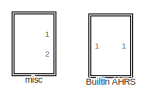
[diagram: root canvas - part 1/3, top center region]
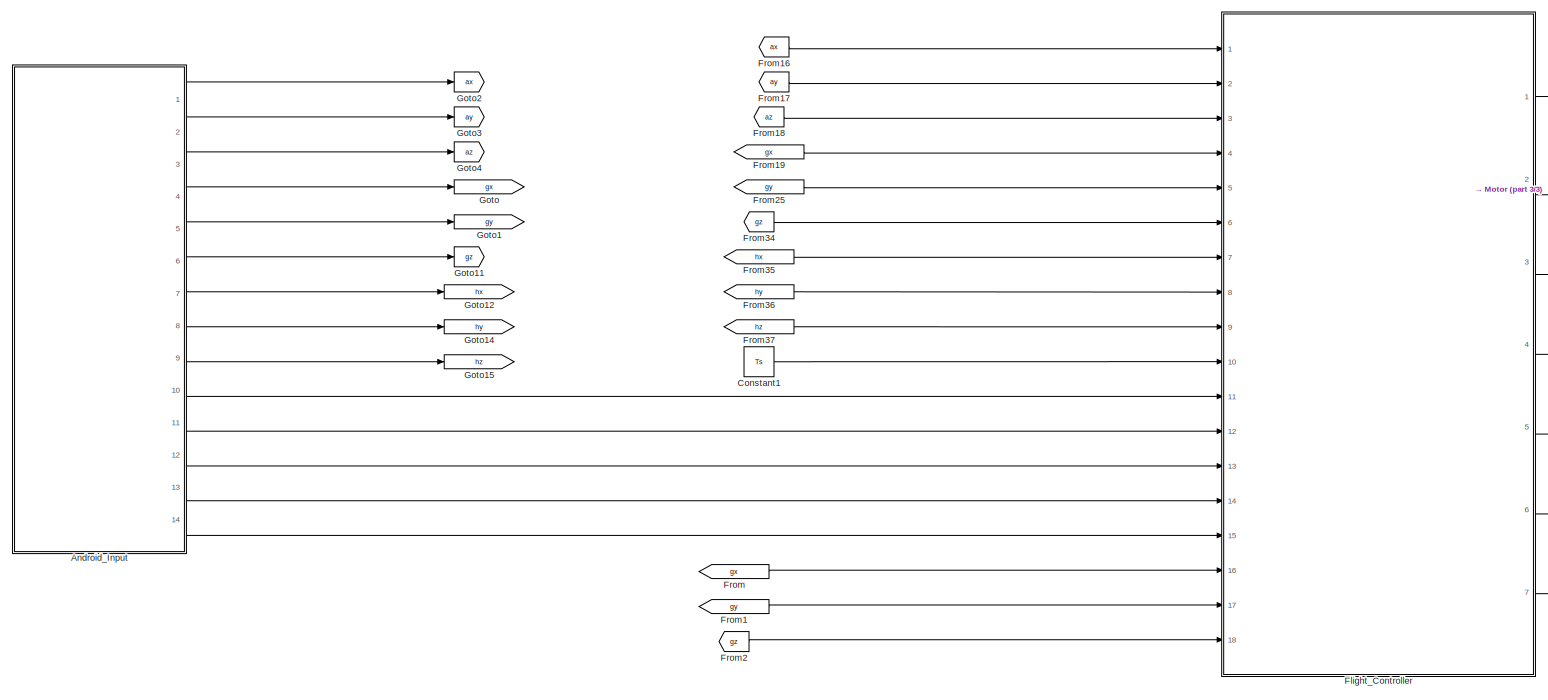
[diagram: root canvas - part 2/3, left side, full height]
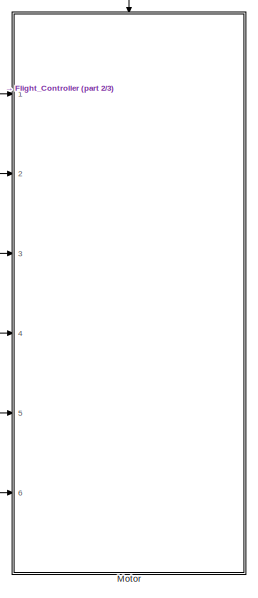
[diagram: root canvas - part 3/3, middle right region]
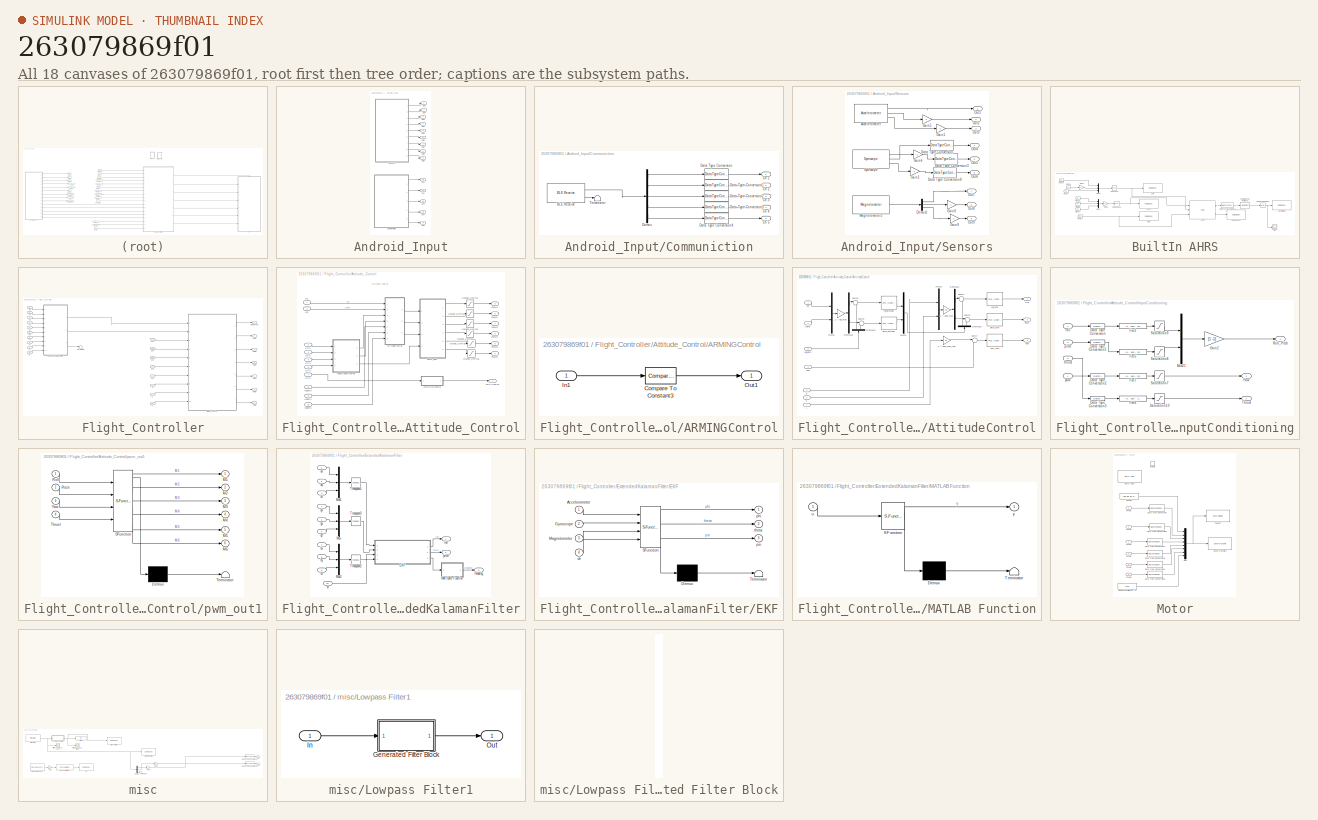
[diagram: thumbnail index - all 18 canvases of the model, root first then tree order]
MODEL slx_263079869f01
KIND model
CONFIG AbsTol = auto
CONFIG EnableMultiTasking = on
CONFIG FixedStep = auto
CONFIG InitFcn = Ts=0.01\nkFactor = 1.2;\n\nKpRollAttitude = 0.630138625117681 / kFactor;\nKiRollAttitude = 0.0552303199591522 / kFactor;\n\nKpPitchAttitude = 0.630138625117681 / kFactor;\nKiPitchAttitude = 0.0552303199591522 / kFactor;\n\nKpRollRate = 1.31533836563383 / kFactor;\nKiRollRate = 0.460338699849681 / kFactor;\n\nKpPitchRate = 1.31533836563383 / kFactor;\nKiPitchRate = 0.460338699849681 / kFactor;\n\nKpYawRate = 1.31...<+64ch>
CONFIG MaxStep = auto
CONFIG MinStep = auto
CONFIG RelTol = 1e-3
CONFIG SampleTimeConstraint = Unconstrained
CONFIG SolverName = ode45
CONFIG StartTime = 0.0
CONFIG StopTime = 10.0
BLOCK [SubSystem] Android_Input
  Ports = [0, 14]
  RequestExecContextInheritance = off
BLOCK [Outport] Android_Input/Ch 1
  Port = 10
BLOCK [Outport] Android_Input/Ch 2
  Port = 11
BLOCK [Outport] Android_Input/Ch 3
  Port = 12
BLOCK [Outport] Android_Input/Ch 4
  Port = 13
BLOCK [Outport] Android_Input/Ch 5
  Port = 14
BLOCK [SubSystem] Android_Input/Communiction
  Ports = [0, 5]
  RequestExecContextInheritance = off
BLOCK [Reference] Android_Input/Communiction/BLE Receive  REF=androidcommunicationlib/BLE Receive
  Ports = [0, 2]
  SourceBlock = androidcommunicationlib/BLE Receive
  SourceProductBaseCode = ANDROID
  SourceType = codertarget.internal.androidBLEReceive
BLOCK [Outport] Android_Input/Communiction/Ch 1
BLOCK [Outport] Android_Input/Communiction/Ch 2
  Port = 2
BLOCK [Outport] Android_Input/Communiction/Ch 3
  Port = 3
BLOCK [Outport] Android_Input/Communiction/Ch 4
  Port = 4
BLOCK [Outport] Android_Input/Communiction/Ch 5
  Port = 5
BLOCK [DataTypeConversion] Android_Input/Communiction/Data Type Conversion
  OutDataTypeStr = uint16
  RndMeth = Round
  SaturateOnIntegerOverflow = off
BLOCK [DataTypeConversion] Android_Input/Communiction/Data Type Conversion1
  OutDataTypeStr = uint16
  RndMeth = Round
  SaturateOnIntegerOverflow = off
BLOCK [DataTypeConversion] Android_Input/Communiction/Data Type Conversion2
  OutDataTypeStr = uint16
  RndMeth = Round
  SaturateOnIntegerOverflow = off
BLOCK [DataTypeConversion] Android_Input/Communiction/Data Type Conversion3
  OutDataTypeStr = uint16
  RndMeth = Round
  SaturateOnIntegerOverflow = off
BLOCK [DataTypeConversion] Android_Input/Communiction/Data Type Conversion4
  OutDataTypeStr = uint16
  RndMeth = Round
  SaturateOnIntegerOverflow = off
BLOCK [Demux] Android_Input/Communiction/Demux
  Outputs = 5
  Ports = [1, 5]
BLOCK [Terminator] Android_Input/Communiction/Terminator
  Commented = on
BLOCK [Outport] Android_Input/Out1
BLOCK [Outport] Android_Input/Out2
  Port = 2
BLOCK [Outport] Android_Input/Out3
  Port = 3
BLOCK [Outport] Android_Input/Out4
  Port = 4
BLOCK [Outport] Android_Input/Out5
  Port = 5
BLOCK [Outport] Android_Input/Out6
  Port = 6
BLOCK [Outport] Android_Input/Out7
  Port = 7
BLOCK [Outport] Android_Input/Out8
  Port = 8
BLOCK [Outport] Android_Input/Out9
  Port = 9
BLOCK [SubSystem] Android_Input/Sensors
  Ports = [0, 9]
  RequestExecContextInheritance = off
BLOCK [Reference] Android_Input/Sensors/Accelerometer  REF=androidsensorlib/Accelerometer
  Ports = [0, 3]
  SourceBlock = androidsensorlib/Accelerometer
  SourceProductBaseCode = ANDROID
  SourceType = codertarget.internal.androidAccelerometer
BLOCK [DataTypeConversion] Android_Input/Sensors/Data Type Conversion
  RndMeth = Floor
  SaturateOnIntegerOverflow = off
BLOCK [DataTypeConversion] Android_Input/Sensors/Data Type Conversion3
  RndMeth = Floor
  SaturateOnIntegerOverflow = off
BLOCK [DataTypeConversion] Android_Input/Sensors/Data Type Conversion8
  RndMeth = Floor
  SaturateOnIntegerOverflow = off
BLOCK [Demux] Android_Input/Sensors/Demux1
  Outputs = 3
  Ports = [1, 3]
BLOCK [Gain] Android_Input/Sensors/Gain1
  Gain = -1
BLOCK [Gain] Android_Input/Sensors/Gain2
  Gain = -1
BLOCK [Gain] Android_Input/Sensors/Gain5
  Gain = -1
BLOCK [Gain] Android_Input/Sensors/Gain6
  Gain = -1
BLOCK [Gain] Android_Input/Sensors/Gain8
  Gain = -1
BLOCK [Gain] Android_Input/Sensors/Gain9
  Gain = -1
BLOCK [Reference] Android_Input/Sensors/Gyroscope  REF=androidsensorlib/Gyroscope
  Ports = [0, 3]
  SourceBlock = androidsensorlib/Gyroscope
  SourceProductBaseCode = ANDROID
  SourceType = codertarget.internal.androidGyroscope
BLOCK [Reference] Android_Input/Sensors/Magnetometer1  REF=androidsensorlib/Magnetometer
  Ports = [0, 1]
  SourceBlock = androidsensorlib/Magnetometer
  SourceProductBaseCode = ANDROID
  SourceType = codertarget.internal.androidMagnetometer
BLOCK [Outport] Android_Input/Sensors/Out1
BLOCK [Outport] Android_Input/Sensors/Out2
  Port = 2
BLOCK [Outport] Android_Input/Sensors/Out3
  Port = 3
BLOCK [Outport] Android_Input/Sensors/Out4
  Port = 4
BLOCK [Outport] Android_Input/Sensors/Out5
  Port = 5
BLOCK [Outport] Android_Input/Sensors/Out6
  Port = 6
BLOCK [Outport] Android_Input/Sensors/Out7
  Port = 7
BLOCK [Outport] Android_Input/Sensors/Out8
  Port = 8
BLOCK [Outport] Android_Input/Sensors/Out9
  Port = 9
BLOCK [SubSystem] BuiltIn AHRS
  Commented = on
  Ports = []
  RequestExecContextInheritance = off
BLOCK [Reference] BuiltIn AHRS/AHRS  REF=mspfiltlib/AHRS
  Commented = on
  Ports = [3, 2]
  SourceBlock = mspfiltlib/AHRS
  SourceProductBaseCode = TF,NV
  SourceType = fusion.simulink.ahrsfilter
BLOCK [Reference] BuiltIn AHRS/AHRS Ang Vel  REF=androiduilib/Data Display
  Commented = on
  Ports = [1]
  SourceBlock = androiduilib/Data Display
  SourceProductBaseCode = ANDROID
  SourceType = codertarget.internal.androidDataDisplay
BLOCK [Reference] BuiltIn AHRS/AHRS Attitude  REF=androiduilib/Data Display
  Commented = on
  Ports = [1]
  SourceBlock = androiduilib/Data Display
  SourceProductBaseCode = ANDROID
  SourceType = codertarget.internal.androidDataDisplay
BLOCK [Reference] BuiltIn AHRS/Accel  REF=androiduilib/Data Display
  Commented = on
  Ports = [1]
  SourceBlock = androiduilib/Data Display
  SourceProductBaseCode = ANDROID
  SourceType = codertarget.internal.androidDataDisplay
BLOCK [DataTypeConversion] BuiltIn AHRS/Data Type Conversion6
  Commented = on
  RndMeth = Floor
  SaturateOnIntegerOverflow = off
BLOCK [From] BuiltIn AHRS/From13
  Commented = on
  GotoTag = ay
BLOCK [From] BuiltIn AHRS/From14
  Commented = on
  GotoTag = az
BLOCK [From] BuiltIn AHRS/From15
  Commented = on
  GotoTag = ax
BLOCK [From] BuiltIn AHRS/From16
  Commented = on
  GotoTag = gy
BLOCK [From] BuiltIn AHRS/From17
  Commented = on
  GotoTag = gz
BLOCK [From] BuiltIn AHRS/From18
  Commented = on
  GotoTag = gx
BLOCK [From] BuiltIn AHRS/From19
  Commented = on
  GotoTag = mag
BLOCK [Gain] BuiltIn AHRS/Gain5
  Commented = on
  Gain = -1
BLOCK [Gain] BuiltIn AHRS/Gain6
  Commented = on
BLOCK [Reference] BuiltIn AHRS/Gyro  REF=androiduilib/Data Display
  Commented = on
  Ports = [1]
  SourceBlock = androiduilib/Data Display
  SourceProductBaseCode = ANDROID
  SourceType = codertarget.internal.androidDataDisplay
BLOCK [Reference] BuiltIn AHRS/Mag  REF=androiduilib/Data Display
  Commented = on
  Ports = [1]
  SourceBlock = androiduilib/Data Display
  SourceProductBaseCode = ANDROID
  SourceType = codertarget.internal.androidDataDisplay
BLOCK [Mux] BuiltIn AHRS/Mux3
  Commented = on
  DisplayOption = bar
  Inputs = 3
  Ports = [3, 1]
BLOCK [Mux] BuiltIn AHRS/Mux4
  Commented = on
  DisplayOption = bar
  Inputs = 3
  Ports = [3, 1]
BLOCK [Quat2Rod] BuiltIn AHRS/Quaternions to Rodrigues
  Commented = on
  Ports = [1, 1]
BLOCK [Reference] BuiltIn AHRS/Radians to Degrees  REF=simulink_extras/Transformations/Radians
to Degrees
  Commented = on
  Ports = [1, 1]
  SourceBlock = simulink_extras/Transformations/Radians\nto Degrees
  SourceProductBaseCode = SL
  SourceType = RadiansToDegrees
BLOCK [Math] BuiltIn AHRS/Transpose
  Commented = on
  Operator = transpose
  Ports = [1, 1]
BLOCK [Math] BuiltIn AHRS/Transpose1
  Commented = on
  Operator = transpose
  Ports = [1, 1]
BLOCK [Scope] BuiltIn AHRS/att
  Commented = on
  Floating = off
  NumInputPorts = 1
  Ports = [1]
  ScopeSpecificationString = Simulink.scopes.TimeScopeBlockCfg('CurrentConfiguration', extmgr.ConfigurationSet(extmgr.Configuration('Core','General UI',true),extmgr.Configuration('Core','Source UI',true),extmgr.Configuration('Sources','WiredSimulink',true,'DataLoggingVariableName','ScopeData4'),extmgr.Configuration('Visuals','Time Domain',true,'SerializedDisplays',{struct('MinYLimReal','-10.00000','MaxYLimReal','10.00000','YL...<+1388ch>
BLOCK [Constant] Constant1
  Value = Ts
BLOCK [SubSystem] Flight_Controller
  Ports = [18, 7]
  RequestExecContextInheritance = off
BLOCK [Outport] Flight_Controller/ARM Control
BLOCK [SubSystem] Flight_Controller/Attitude_Control
  Ports = [10, 7]
  RequestExecContextInheritance = off
BLOCK [Outport] Flight_Controller/Attitude_Control/ARM Control
BLOCK [SubSystem] Flight_Controller/Attitude_Control/ARMINGControl
  Ports = [1, 1]
  RequestExecContextInheritance = off
BLOCK [Reference] Flight_Controller/Attitude_Control/ARMINGControl/Compare To Constant3  REF=simulink/Logic and Bit
Operations/Compare
To Constant
  Ports = [1, 1]
  SourceBlock = simulink/Logic and Bit\nOperations/Compare\nTo Constant
  SourceProductBaseCode = SL
  SourceType = Compare To Constant
BLOCK [Inport] Flight_Controller/Attitude_Control/ARMINGControl/In1
BLOCK [Outport] Flight_Controller/Attitude_Control/ARMINGControl/Out1
  VectorParamsAs1DForOutWhenUnconnected = off
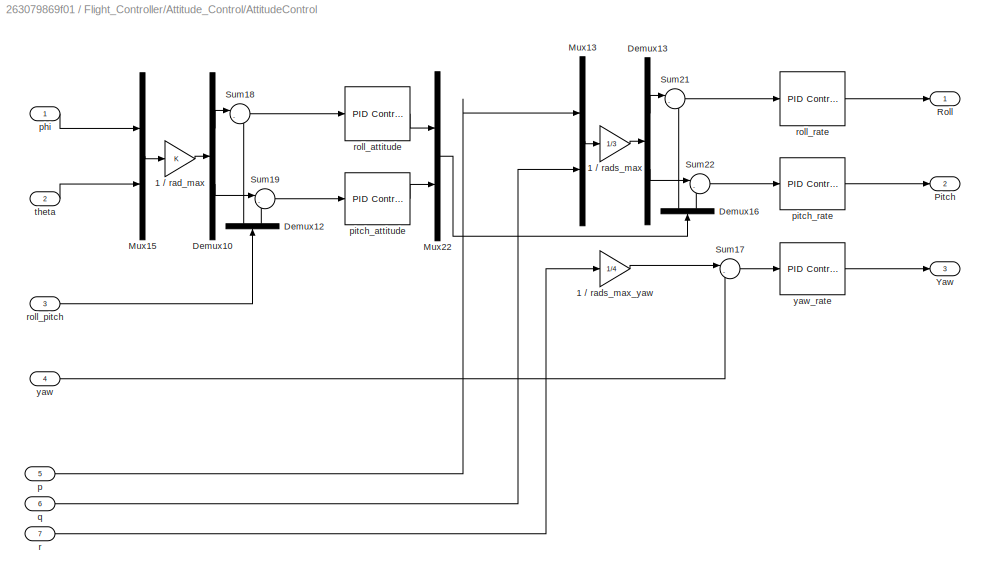
BLOCK [SubSystem] Flight_Controller/Attitude_Control/AttitudeControl
  Ports = [7, 3]
  RequestExecContextInheritance = off
BLOCK [Gain] Flight_Controller/Attitude_Control/AttitudeControl/1 // rad_max
BLOCK [Gain] Flight_Controller/Attitude_Control/AttitudeControl/1 // rads_max
  Gain = 1/3
BLOCK [Gain] Flight_Controller/Attitude_Control/AttitudeControl/1 // rads_max_yaw
  Gain = 1/4
BLOCK [Demux] Flight_Controller/Attitude_Control/AttitudeControl/Demux10
  Outputs = 2
  Ports = [1, 2]
BLOCK [Demux] Flight_Controller/Attitude_Control/AttitudeControl/Demux12
  NameLocation = right
  Outputs = 2
  Ports = [1, 2]
BLOCK [Demux] Flight_Controller/Attitude_Control/AttitudeControl/Demux13
  Outputs = 2
  Ports = [1, 2]
BLOCK [Demux] Flight_Controller/Attitude_Control/AttitudeControl/Demux16
  NameLocation = right
  Outputs = 2
  Ports = [1, 2]
BLOCK [Mux] Flight_Controller/Attitude_Control/AttitudeControl/Mux13
  DisplayOption = bar
  Inputs = 2
  Ports = [2, 1]
BLOCK [Mux] Flight_Controller/Attitude_Control/AttitudeControl/Mux15
  DisplayOption = bar
  Inputs = 2
  Ports = [2, 1]
BLOCK [Mux] Flight_Controller/Attitude_Control/AttitudeControl/Mux22
  DisplayOption = bar
  Inputs = 2
  Ports = [2, 1]
BLOCK [Outport] Flight_Controller/Attitude_Control/AttitudeControl/Pitch
  Port = 2
  VectorParamsAs1DForOutWhenUnconnected = off
BLOCK [Outport] Flight_Controller/Attitude_Control/AttitudeControl/Roll
  VectorParamsAs1DForOutWhenUnconnected = off
BLOCK [Sum] Flight_Controller/Attitude_Control/AttitudeControl/Sum17
  Inputs = |-+
  Ports = [2, 1]
BLOCK [Sum] Flight_Controller/Attitude_Control/AttitudeControl/Sum18
  Inputs = |-+
  Ports = [2, 1]
BLOCK [Sum] Flight_Controller/Attitude_Control/AttitudeControl/Sum19
  Inputs = |-+
  Ports = [2, 1]
BLOCK [Sum] Flight_Controller/Attitude_Control/AttitudeControl/Sum21
  Inputs = |-+
  Ports = [2, 1]
BLOCK [Sum] Flight_Controller/Attitude_Control/AttitudeControl/Sum22
  Inputs = |-+
  Ports = [2, 1]
BLOCK [Outport] Flight_Controller/Attitude_Control/AttitudeControl/Yaw
  Port = 3
  VectorParamsAs1DForOutWhenUnconnected = off
BLOCK [Inport] Flight_Controller/Attitude_Control/AttitudeControl/p
  Port = 5
BLOCK [Inport] Flight_Controller/Attitude_Control/AttitudeControl/phi
BLOCK [Reference] Flight_Controller/Attitude_Control/AttitudeControl/pitch_attitude  REF=pid_lib/PID Controller
  Ports = [1, 1]
  SourceBlock = pid_lib/PID Controller
  SourceProductBaseCode = SL
  SourceType = PID 1dof
BLOCK [Reference] Flight_Controller/Attitude_Control/AttitudeControl/pitch_rate  REF=pid_lib/PID Controller
  Ports = [1, 1]
  SourceBlock = pid_lib/PID Controller
  SourceProductBaseCode = SL
  SourceType = PID 1dof
BLOCK [Inport] Flight_Controller/Attitude_Control/AttitudeControl/q
  Port = 6
BLOCK [Inport] Flight_Controller/Attitude_Control/AttitudeControl/r
  Port = 7
BLOCK [Reference] Flight_Controller/Attitude_Control/AttitudeControl/roll_attitude  REF=pid_lib/PID Controller
  Ports = [1, 1]
  SourceBlock = pid_lib/PID Controller
  SourceProductBaseCode = SL
  SourceType = PID 1dof
BLOCK [Inport] Flight_Controller/Attitude_Control/AttitudeControl/roll_pitch
  Port = 3
BLOCK [Reference] Flight_Controller/Attitude_Control/AttitudeControl/roll_rate  REF=pid_lib/PID Controller
  Ports = [1, 1]
  SourceBlock = pid_lib/PID Controller
  SourceProductBaseCode = SL
  SourceType = PID 1dof
BLOCK [Inport] Flight_Controller/Attitude_Control/AttitudeControl/theta
  Port = 2
BLOCK [Inport] Flight_Controller/Attitude_Control/AttitudeControl/yaw
  Port = 4
BLOCK [Reference] Flight_Controller/Attitude_Control/AttitudeControl/yaw_rate  REF=pid_lib/PID Controller
  Ports = [1, 1]
  SourceBlock = pid_lib/PID Controller
  SourceProductBaseCode = SL
  SourceType = PID 1dof
BLOCK [Inport] Flight_Controller/Attitude_Control/Ch 1
  OutDataTypeStr = uint16
  Port = 3
BLOCK [Inport] Flight_Controller/Attitude_Control/Ch 2
  OutDataTypeStr = uint16
  Port = 4
BLOCK [Inport] Flight_Controller/Attitude_Control/Ch 3
  OutDataTypeStr = uint16
  Port = 5
BLOCK [Inport] Flight_Controller/Attitude_Control/Ch 4
  OutDataTypeStr = uint16
  Port = 6
BLOCK [Inport] Flight_Controller/Attitude_Control/Ch 5
  OutDataTypeStr = uint16
  Port = 7
BLOCK [Inport] Flight_Controller/Attitude_Control/In1
BLOCK [Inport] Flight_Controller/Attitude_Control/In2
  Port = 2
BLOCK [Inport] Flight_Controller/Attitude_Control/Inport2
  Port = 9
BLOCK [Inport] Flight_Controller/Attitude_Control/Inport3
  Port = 10
BLOCK [Inport] Flight_Controller/Attitude_Control/Inport5
  Port = 8
BLOCK [SubSystem] Flight_Controller/Attitude_Control/InputConditioning
  Ports = [4, 3]
  RequestExecContextInheritance = off
BLOCK [DataTypeConversion] Flight_Controller/Attitude_Control/InputConditioning/Data Type Conversion
  LockScale = on
  OutDataTypeStr = single
  RndMeth = Floor
  SaturateOnIntegerOverflow = off
BLOCK [DataTypeConversion] Flight_Controller/Attitude_Control/InputConditioning/Data Type Conversion1
  OutDataTypeStr = single
  RndMeth = Floor
  SaturateOnIntegerOverflow = off
BLOCK [DataTypeConversion] Flight_Controller/Attitude_Control/InputConditioning/Data Type Conversion2
  OutDataTypeStr = single
  RndMeth = Floor
  SaturateOnIntegerOverflow = off
BLOCK [DataTypeConversion] Flight_Controller/Attitude_Control/InputConditioning/Data Type Conversion3
  OutDataTypeStr = single
  RndMeth = Floor
  SaturateOnIntegerOverflow = off
BLOCK [Fcn] Flight_Controller/Attitude_Control/InputConditioning/Fcn2
  Expr = (u - 150) / 50
BLOCK [Fcn] Flight_Controller/Attitude_Control/InputConditioning/Fcn5
  Expr = (u - 150) / 50
BLOCK [Fcn] Flight_Controller/Attitude_Control/InputConditioning/Fcn6
  Expr = (u - 100) / 100
BLOCK [Fcn] Flight_Controller/Attitude_Control/InputConditioning/Fcn7
  Expr = (u - 150) / 50
BLOCK [Gain] Flight_Controller/Attitude_Control/InputConditioning/Gain2
  Gain = [1 -1]
  OutDataTypeStr = Inherit: Inherit via back propagation
BLOCK [Mux] Flight_Controller/Attitude_Control/InputConditioning/Mux21
  DisplayOption = bar
  Inputs = 2
  Ports = [2, 1]
BLOCK [Outport] Flight_Controller/Attitude_Control/InputConditioning/Roll_Pitch
  VectorParamsAs1DForOutWhenUnconnected = off
BLOCK [Saturate] Flight_Controller/Attitude_Control/InputConditioning/Saturation10
  LowerLimit = 0
  UpperLimit = 1
BLOCK [Saturate] Flight_Controller/Attitude_Control/InputConditioning/Saturation7
  LowerLimit = -1
  UpperLimit = 1
BLOCK [Saturate] Flight_Controller/Attitude_Control/InputConditioning/Saturation8
  LowerLimit = -1
  UpperLimit = 1
BLOCK [Saturate] Flight_Controller/Attitude_Control/InputConditioning/Saturation9
  LowerLimit = -1
  UpperLimit = 1
BLOCK [Outport] Flight_Controller/Attitude_Control/InputConditioning/Thrust
  Port = 3
  VectorParamsAs1DForOutWhenUnconnected = off
BLOCK [Outport] Flight_Controller/Attitude_Control/InputConditioning/Yaw
  Port = 2
  VectorParamsAs1DForOutWhenUnconnected = off
BLOCK [Inport] Flight_Controller/Attitude_Control/InputConditioning/pitch
  Port = 2
BLOCK [Inport] Flight_Controller/Attitude_Control/InputConditioning/roll
BLOCK [Inport] Flight_Controller/Attitude_Control/InputConditioning/thrust
  Port = 3
BLOCK [Inport] Flight_Controller/Attitude_Control/InputConditioning/yaw
  Port = 4
BLOCK [Saturate] Flight_Controller/Attitude_Control/Output_Limits1
  LowerLimit = 100
  UpperLimit = 200
BLOCK [Saturate] Flight_Controller/Attitude_Control/Output_Limits2
  LowerLimit = 100
  UpperLimit = 200
BLOCK [Saturate] Flight_Controller/Attitude_Control/Output_Limits3
  LowerLimit = 100
  UpperLimit = 200
BLOCK [Saturate] Flight_Controller/Attitude_Control/Output_Limits4
  LowerLimit = 100
  UpperLimit = 200
BLOCK [Saturate] Flight_Controller/Attitude_Control/Output_Limits5
  LowerLimit = 100
  UpperLimit = 200
BLOCK [Saturate] Flight_Controller/Attitude_Control/Output_Limits6
  LowerLimit = 100
  UpperLimit = 200
BLOCK [Outport] Flight_Controller/Attitude_Control/PWM1
  Port = 2
BLOCK [Outport] Flight_Controller/Attitude_Control/PWM2
  Port = 3
BLOCK [Outport] Flight_Controller/Attitude_Control/PWM3
  Port = 4
BLOCK [Outport] Flight_Controller/Attitude_Control/PWM4
  Port = 5
BLOCK [Outport] Flight_Controller/Attitude_Control/PWM5
  Port = 6
BLOCK [Outport] Flight_Controller/Attitude_Control/PWM6
  Port = 7
BLOCK [SubSystem] Flight_Controller/Attitude_Control/pwm_out1
  ErrorFcn = Stateflow.Translate.translate
  PermitHierarchicalResolution = ExplicitOnly
  Ports = [4, 6]
  RequestExecContextInheritance = off
  SFBlockType = MATLAB Function
  SystemSampleTime = 0.004
  TreatAsAtomicUnit = on
BLOCK [Demux] Flight_Controller/Attitude_Control/pwm_out1/ Demux 
  Outputs = 1
  Ports = [1, 1]
BLOCK [S-Function] Flight_Controller/Attitude_Control/pwm_out1/ SFunction 
  EnableBusSupport = on
  FunctionName = sf_sfun
  PortCounts = [4 7]
  Ports = [4, 7]
  SFcnIsStateOwnerBlock = off
  SFunctionDeploymentMode = off
  Tag = Stateflow S-Function 1
BLOCK [Terminator] Flight_Controller/Attitude_Control/pwm_out1/ Terminator 
BLOCK [Outport] Flight_Controller/Attitude_Control/pwm_out1/M1
  VectorParamsAs1DForOutWhenUnconnected = off
BLOCK [Outport] Flight_Controller/Attitude_Control/pwm_out1/M2
  Port = 2
  VectorParamsAs1DForOutWhenUnconnected = off
BLOCK [Outport] Flight_Controller/Attitude_Control/pwm_out1/M3
  Port = 3
  VectorParamsAs1DForOutWhenUnconnected = off
BLOCK [Outport] Flight_Controller/Attitude_Control/pwm_out1/M4
  Port = 4
  VectorParamsAs1DForOutWhenUnconnected = off
BLOCK [Outport] Flight_Controller/Attitude_Control/pwm_out1/M5
  Port = 5
  VectorParamsAs1DForOutWhenUnconnected = off
BLOCK [Outport] Flight_Controller/Attitude_Control/pwm_out1/M6
  Port = 6
  VectorParamsAs1DForOutWhenUnconnected = off
BLOCK [Inport] Flight_Controller/Attitude_Control/pwm_out1/Pitch
  Port = 2
BLOCK [Inport] Flight_Controller/Attitude_Control/pwm_out1/Roll
BLOCK [Inport] Flight_Controller/Attitude_Control/pwm_out1/Thrust
  Port = 4
BLOCK [Inport] Flight_Controller/Attitude_Control/pwm_out1/Yaw
  Port = 3
BLOCK [Inport] Flight_Controller/Ch 1
  Port = 11
BLOCK [Inport] Flight_Controller/Ch 2
  Port = 12
BLOCK [Inport] Flight_Controller/Ch 3
  Port = 13
BLOCK [Inport] Flight_Controller/Ch 4
  Port = 14
BLOCK [Inport] Flight_Controller/Ch 5
  Port = 15
BLOCK [SubSystem] Flight_Controller/ExtendedKalamanFilter
  Ports = [10, 3]
  RequestExecContextInheritance = off
BLOCK [SubSystem] Flight_Controller/ExtendedKalamanFilter/EKF
  ErrorFcn = Stateflow.Translate.translate
  PermitHierarchicalResolution = ExplicitOnly
  Ports = [4, 3]
  RequestExecContextInheritance = off
  SFBlockType = MATLAB Function
  TreatAsAtomicUnit = on
BLOCK [Demux] Flight_Controller/ExtendedKalamanFilter/EKF/ Demux 
  Outputs = 1
  Ports = [1, 1]
BLOCK [S-Function] Flight_Controller/ExtendedKalamanFilter/EKF/ SFunction 
  EnableBusSupport = on
  FunctionName = sf_sfun
  PortCounts = [4 4]
  Ports = [4, 4]
  SFcnIsStateOwnerBlock = off
  SFunctionDeploymentMode = off
  Tag = Stateflow S-Function 2
BLOCK [Terminator] Flight_Controller/ExtendedKalamanFilter/EKF/ Terminator 
BLOCK [Inport] Flight_Controller/ExtendedKalamanFilter/EKF/Accelerometer
BLOCK [Inport] Flight_Controller/ExtendedKalamanFilter/EKF/Gyroscope
  Port = 2
BLOCK [Inport] Flight_Controller/ExtendedKalamanFilter/EKF/Magnetometer
  Port = 3
BLOCK [Inport] Flight_Controller/ExtendedKalamanFilter/EKF/dt
  Port = 4
BLOCK [Outport] Flight_Controller/ExtendedKalamanFilter/EKF/phi
BLOCK [Outport] Flight_Controller/ExtendedKalamanFilter/EKF/psi
  Port = 3
BLOCK [Outport] Flight_Controller/ExtendedKalamanFilter/EKF/theta
  Port = 2
BLOCK [Outport] Flight_Controller/ExtendedKalamanFilter/Heading
  Port = 3
BLOCK [SubSystem] Flight_Controller/ExtendedKalamanFilter/MATLAB Function
  ErrorFcn = Stateflow.Translate.translate
  PermitHierarchicalResolution = ExplicitOnly
  Ports = [1, 1]
  RequestExecContextInheritance = off
  SFBlockType = MATLAB Function
  TreatAsAtomicUnit = on
BLOCK [Demux] Flight_Controller/ExtendedKalamanFilter/MATLAB Function/ Demux 
  Outputs = 1
  Ports = [1, 1]
BLOCK [S-Function] Flight_Controller/ExtendedKalamanFilter/MATLAB Function/ SFunction 
  EnableBusSupport = on
  FunctionName = sf_sfun
  PortCounts = [1 2]
  Ports = [1, 2]
  SFcnIsStateOwnerBlock = off
  SFunctionDeploymentMode = off
  Tag = Stateflow S-Function 3
BLOCK [Terminator] Flight_Controller/ExtendedKalamanFilter/MATLAB Function/ Terminator 
BLOCK [Inport] Flight_Controller/ExtendedKalamanFilter/MATLAB Function/u
BLOCK [Outport] Flight_Controller/ExtendedKalamanFilter/MATLAB Function/y
BLOCK [Mux] Flight_Controller/ExtendedKalamanFilter/Mux
  DisplayOption = bar
  Inputs = 3
  Ports = [3, 1]
BLOCK [Mux] Flight_Controller/ExtendedKalamanFilter/Mux1
  DisplayOption = bar
  Inputs = 3
  Ports = [3, 1]
BLOCK [Mux] Flight_Controller/ExtendedKalamanFilter/Mux2
  DisplayOption = bar
  Inputs = 3
  Ports = [3, 1]
BLOCK [Math] Flight_Controller/ExtendedKalamanFilter/Transpose1
  Operator = transpose
  Ports = [1, 1]
BLOCK [Math] Flight_Controller/ExtendedKalamanFilter/Transpose2
  Operator = transpose
  Ports = [1, 1]
BLOCK [Math] Flight_Controller/ExtendedKalamanFilter/Transpose3
  Operator = transpose
  Ports = [1, 1]
BLOCK [Inport] Flight_Controller/ExtendedKalamanFilter/ax
BLOCK [Inport] Flight_Controller/ExtendedKalamanFilter/ay
  Port = 2
BLOCK [Inport] Flight_Controller/ExtendedKalamanFilter/az
  Port = 3
BLOCK [Inport] Flight_Controller/ExtendedKalamanFilter/dt
  Port = 10
BLOCK [Inport] Flight_Controller/ExtendedKalamanFilter/gx
  Port = 4
BLOCK [Inport] Flight_Controller/ExtendedKalamanFilter/gy
  Port = 5
BLOCK [Inport] Flight_Controller/ExtendedKalamanFilter/gz
  Port = 6
BLOCK [Inport] Flight_Controller/ExtendedKalamanFilter/hx
  Port = 7
BLOCK [Inport] Flight_Controller/ExtendedKalamanFilter/hy
  Port = 8
BLOCK [Inport] Flight_Controller/ExtendedKalamanFilter/hz
  Port = 9
BLOCK [Outport] Flight_Controller/ExtendedKalamanFilter/pitch
  Port = 2
BLOCK [Outport] Flight_Controller/ExtendedKalamanFilter/roll
BLOCK [Inport] Flight_Controller/P
  Port = 16
BLOCK [Outport] Flight_Controller/PWM1
  Port = 2
BLOCK [Outport] Flight_Controller/PWM2
  Port = 3
BLOCK [Outport] Flight_Controller/PWM3
  Port = 4
BLOCK [Outport] Flight_Controller/PWM4
  Port = 5
BLOCK [Outport] Flight_Controller/PWM5
  Port = 6
BLOCK [Outport] Flight_Controller/PWM6
  Port = 7
BLOCK [Inport] Flight_Controller/Q
  Port = 17
BLOCK [Inport] Flight_Controller/R
  Port = 18
BLOCK [Terminator] Flight_Controller/Terminator
BLOCK [Inport] Flight_Controller/ax
BLOCK [Inport] Flight_Controller/ay
  Port = 2
BLOCK [Inport] Flight_Controller/az
  Port = 3
BLOCK [Inport] Flight_Controller/dt
  Port = 10
BLOCK [Inport] Flight_Controller/gx
  Port = 4
BLOCK [Inport] Flight_Controller/gy
  Port = 5
BLOCK [Inport] Flight_Controller/gz
  Port = 6
BLOCK [Inport] Flight_Controller/hx
  Port = 7
BLOCK [Inport] Flight_Controller/hy
  Port = 8
BLOCK [Inport] Flight_Controller/hz
  Port = 9
BLOCK [From] From
  GotoTag = gx
BLOCK [From] From1
  GotoTag = gy
BLOCK [From] From16
  GotoTag = ax
BLOCK [From] From17
  GotoTag = ay
BLOCK [From] From18
  GotoTag = az
BLOCK [From] From19
  GotoTag = gx
BLOCK [From] From2
  GotoTag = gz
BLOCK [From] From25
  GotoTag = gy
BLOCK [From] From34
  GotoTag = gz
BLOCK [From] From35
  GotoTag = hx
BLOCK [From] From36
  GotoTag = hy
BLOCK [From] From37
  GotoTag = hz
BLOCK [Goto] Goto
  GotoTag = gx
BLOCK [Goto] Goto1
  GotoTag = gy
BLOCK [Goto] Goto11
  GotoTag = gz
BLOCK [Goto] Goto12
  GotoTag = hx
BLOCK [Goto] Goto14
  GotoTag = hy
BLOCK [Goto] Goto15
  GotoTag = hz
BLOCK [Goto] Goto2
  GotoTag = ax
BLOCK [Goto] Goto3
  GotoTag = ay
BLOCK [Goto] Goto4
  GotoTag = az
BLOCK [SubSystem] Motor
  Ports = [6, 0, 1]
  RequestExecContextInheritance = off
  TreatAsAtomicUnit = on
BLOCK [Reference] Motor/Data Input  REF=androiduilib/Data Input
  Commented = on
  Ports = [0, 1]
  SourceBlock = androiduilib/Data Input
  SourceProductBaseCode = ANDROID
  SourceType = codertarget.internal.androidDataInput
BLOCK [DataTypeConversion] Motor/Data Type Conversion
  OutDataTypeStr = uint8
  RndMeth = Floor
  SaturateOnIntegerOverflow = off
BLOCK [DataTypeConversion] Motor/Data Type Conversion1
  OutDataTypeStr = uint8
  RndMeth = Floor
  SaturateOnIntegerOverflow = off
BLOCK [DataTypeConversion] Motor/Data Type Conversion2
  OutDataTypeStr = uint8
  RndMeth = Floor
  SaturateOnIntegerOverflow = off
BLOCK [DataTypeConversion] Motor/Data Type Conversion3
  OutDataTypeStr = uint8
  RndMeth = Floor
  SaturateOnIntegerOverflow = off
BLOCK [DataTypeConversion] Motor/Data Type Conversion4
  OutDataTypeStr = uint8
  RndMeth = Floor
  SaturateOnIntegerOverflow = off
BLOCK [DataTypeConversion] Motor/Data Type Conversion5
  OutDataTypeStr = uint8
  RndMeth = Floor
  SaturateOnIntegerOverflow = off
BLOCK [EnablePort] Motor/Enable
  Ports = []
BLOCK [Constant] Motor/Header
  OutDataTypeStr = uint8
  SampleTime = Ts
  Value = [68 65 84 65]
BLOCK [Mux] Motor/Mux
  DisplayOption = bar
  Inputs = 8
  Ports = [8, 1]
BLOCK [Inport] Motor/PWM1
BLOCK [Inport] Motor/PWM2
  Port = 2
BLOCK [Inport] Motor/PWM3
  Port = 3
BLOCK [Inport] Motor/PWM4
  Port = 4
BLOCK [Inport] Motor/PWM5
  Port = 5
BLOCK [Inport] Motor/PWM6
  Port = 6
BLOCK [Reference] Motor/Packet  REF=androiduilib/Data Display
  Ports = [1]
  SourceBlock = androiduilib/Data Display
  SourceProductBaseCode = ANDROID
  SourceType = codertarget.internal.androidDataDisplay
BLOCK [Reference] Motor/Serial Transmit1  REF=androidcommunicationlib/Serial Transmit
  Ports = [1]
  SourceBlock = androidcommunicationlib/Serial Transmit
  SourceProductBaseCode = ANDROID
  SourceType = codertarget.internal.androidSerialTransmit
BLOCK [Constant] Motor/packetTerminator \n
  OutDataTypeStr = uint8
  Value = [10]
BLOCK [SubSystem] misc
  Commented = on
  Ports = [0, 2]
  RequestExecContextInheritance = off
BLOCK [Reference] misc/Alt  REF=androiduilib/Data Display
  Commented = on
  Ports = [1]
  SourceBlock = androiduilib/Data Display
  SourceProductBaseCode = ANDROID
  SourceType = codertarget.internal.androidDataDisplay
BLOCK [Display] misc/Attitude
  Commented = on
  Decimation = 1
  Ports = [1]
BLOCK [Scope] misc/Attitude_Scope_Filtered
  Commented = on
  Floating = off
  NumInputPorts = 1
  Ports = [1]
  ScopeSpecificationString = Simulink.scopes.TimeScopeBlockCfg('CurrentConfiguration', extmgr.ConfigurationSet(extmgr.Configuration('Core','General UI',true),extmgr.Configuration('Core','Source UI',true),extmgr.Configuration('Sources','WiredSimulink',true),extmgr.Configuration('Visuals','Time Domain',true),extmgr.Configuration('Tools','Plot Navigation',true),extmgr.Configuration('Tools','Measurements',true)),'Version','2020a'...<+1ch>
BLOCK [Scope] misc/Attitude_Scope_Raw
  Commented = on
  Floating = off
  NumInputPorts = 1
  Ports = [1]
  ScopeSpecificationString = Simulink.scopes.TimeScopeBlockCfg('CurrentConfiguration', extmgr.ConfigurationSet(extmgr.Configuration('Core','General UI',true),extmgr.Configuration('Core','Source UI',true),extmgr.Configuration('Sources','WiredSimulink',true,'DataLoggingVariableName','ScopeData3'),extmgr.Configuration('Visuals','Time Domain',true),extmgr.Configuration('Tools','Plot Navigation',true),extmgr.Configuration('Tools',...<+40ch>
BLOCK [Reference] misc/AttiudeFiltered  REF=androiduilib/Data Display
  Commented = on
  Ports = [1]
  SourceBlock = androiduilib/Data Display
  SourceProductBaseCode = ANDROID
  SourceType = codertarget.internal.androidDataDisplay
BLOCK [DataTypeConversion] misc/Data Type Conversion4
  Commented = on
  RndMeth = Floor
  SaturateOnIntegerOverflow = off
BLOCK [DataTypeConversion] misc/Data Type Conversion5
  Commented = on
  RndMeth = Floor
  SaturateOnIntegerOverflow = off
BLOCK [Demux] misc/Demux
  Commented = on
  Outputs = 3
  Ports = [1, 3]
BLOCK [Gain] misc/Gain
  Commented = on
  Gain = 100
BLOCK [Gain] misc/Gain3
  Commented = on
  Gain = -1
BLOCK [Gain] misc/Gain4
  Commented = on
  Gain = -1
BLOCK [SubSystem] misc/Lowpass Filter1
  Commented = on
  CopyFcn = fdesignblkfcn(gcbh, {'CopyFcn'});
  DialogController = fdesignblkfcn
  InitFcn = fdesignblkfcn(gcbh, {'InitFcn'});
  Ports = [1, 1]
  RequestExecContextInheritance = off
  UserDataPersistent = on
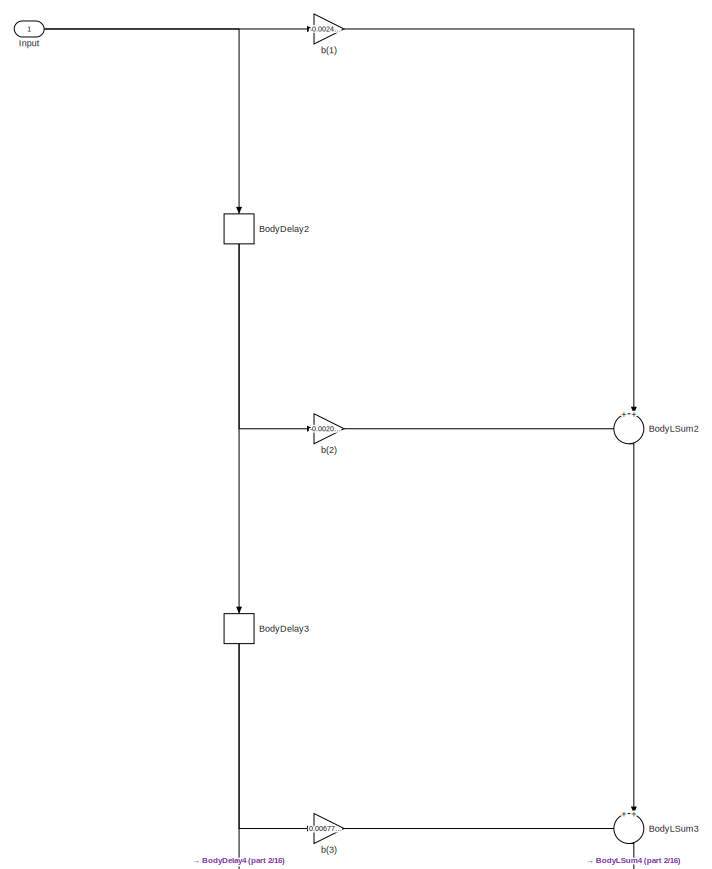
[diagram: misc/Lowpass Filter1/Generated Filter Block - part 1/16, full width, top band]
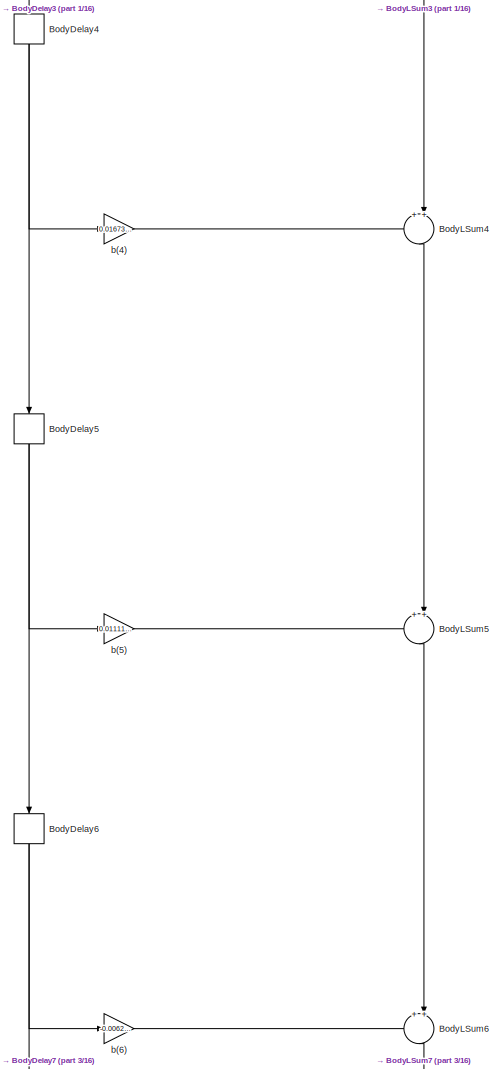
[diagram: misc/Lowpass Filter1/Generated Filter Block - part 2/16, top center region]
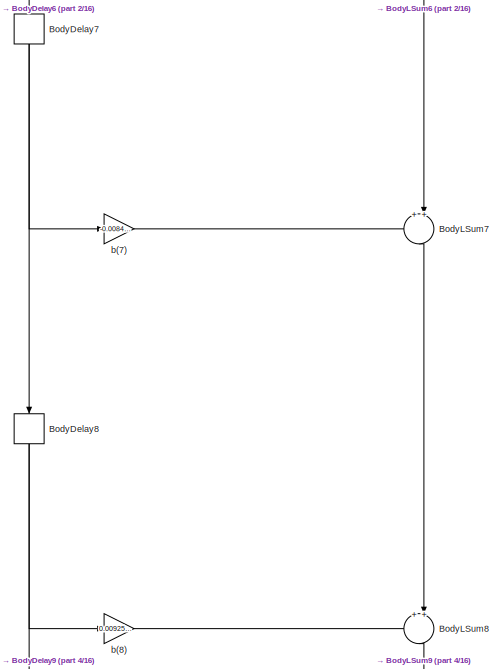
[diagram: misc/Lowpass Filter1/Generated Filter Block - part 3/16, top center region]
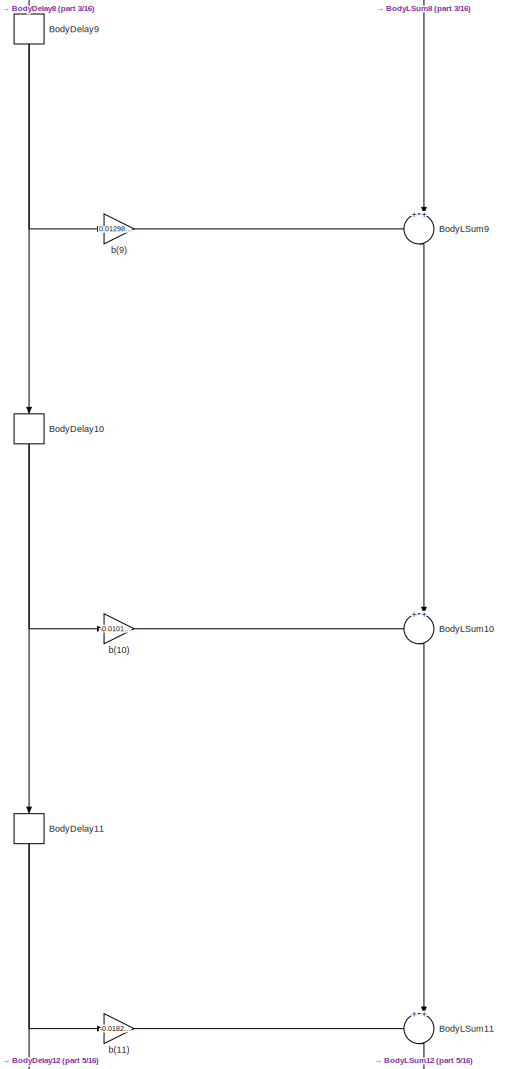
[diagram: misc/Lowpass Filter1/Generated Filter Block - part 4/16, top center region]
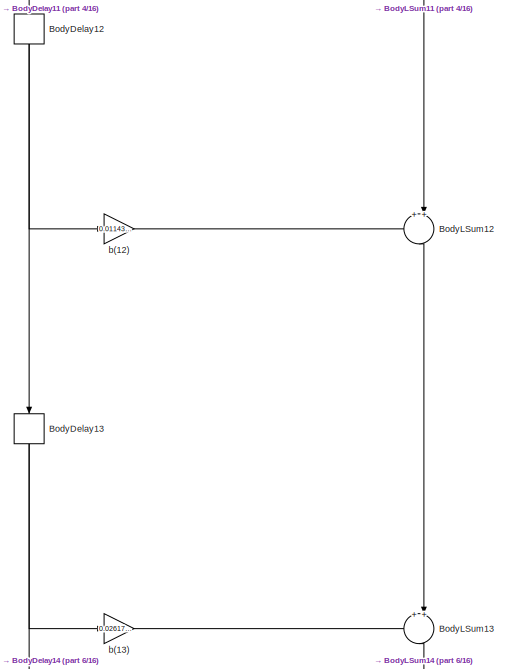
[diagram: misc/Lowpass Filter1/Generated Filter Block - part 5/16, top center region]
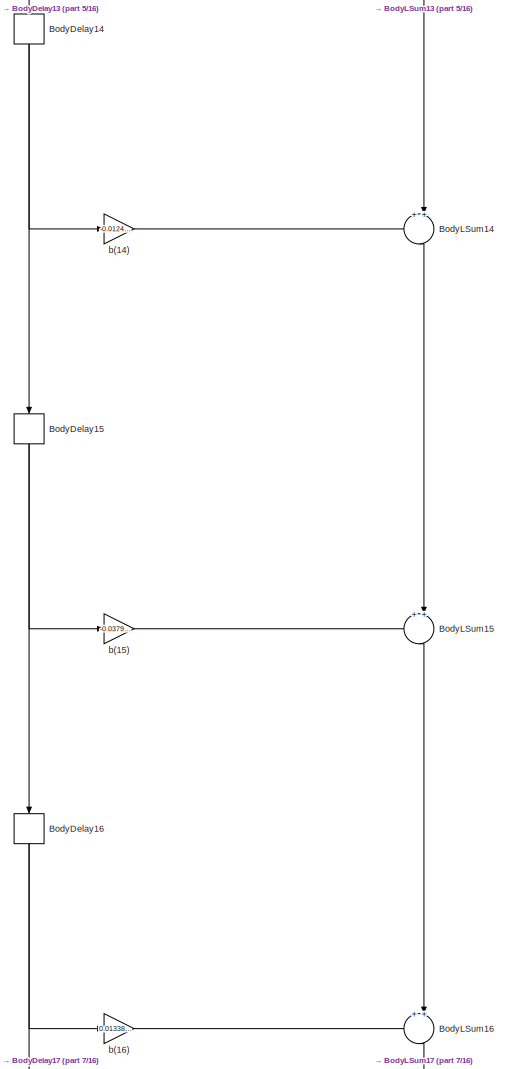
[diagram: misc/Lowpass Filter1/Generated Filter Block - part 6/16, top center region]
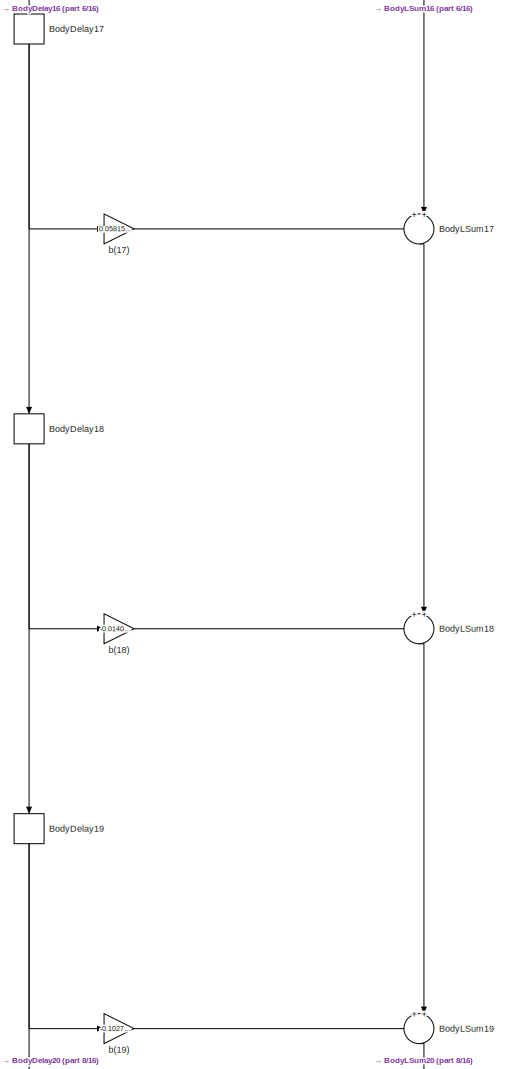
[diagram: misc/Lowpass Filter1/Generated Filter Block - part 7/16, central region]
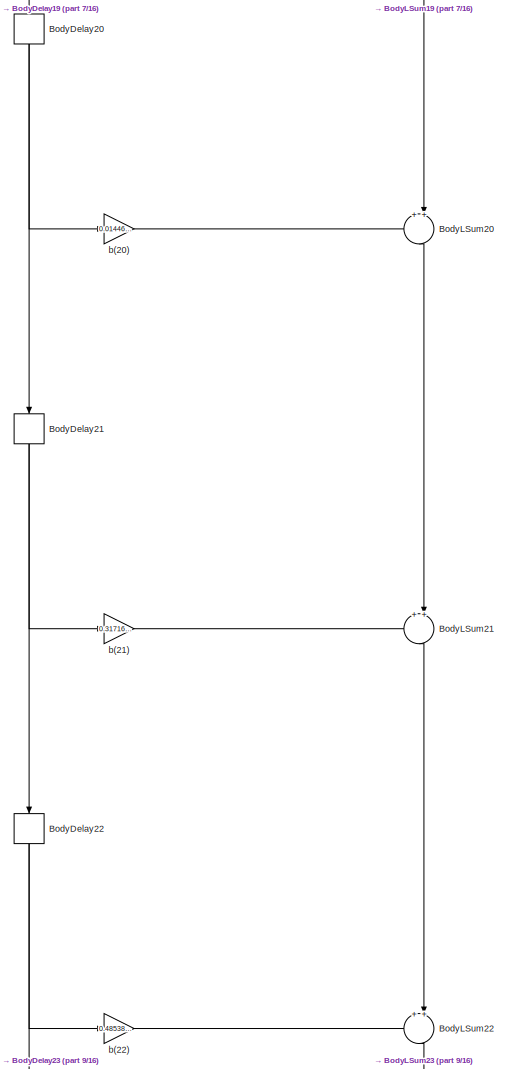
[diagram: misc/Lowpass Filter1/Generated Filter Block - part 8/16, central region]
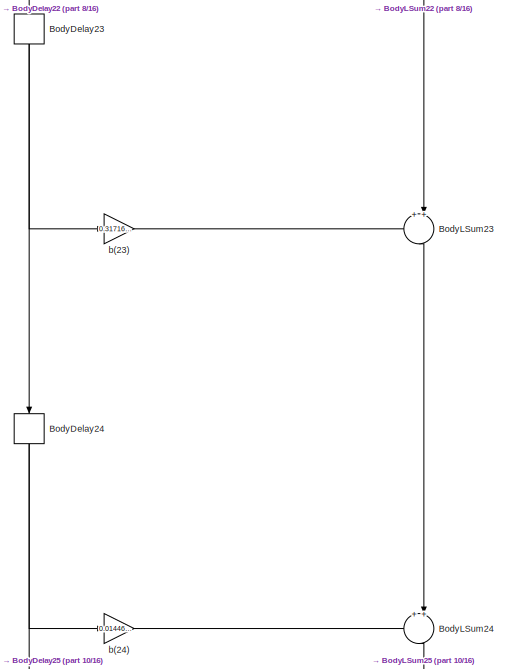
[diagram: misc/Lowpass Filter1/Generated Filter Block - part 9/16, central region]
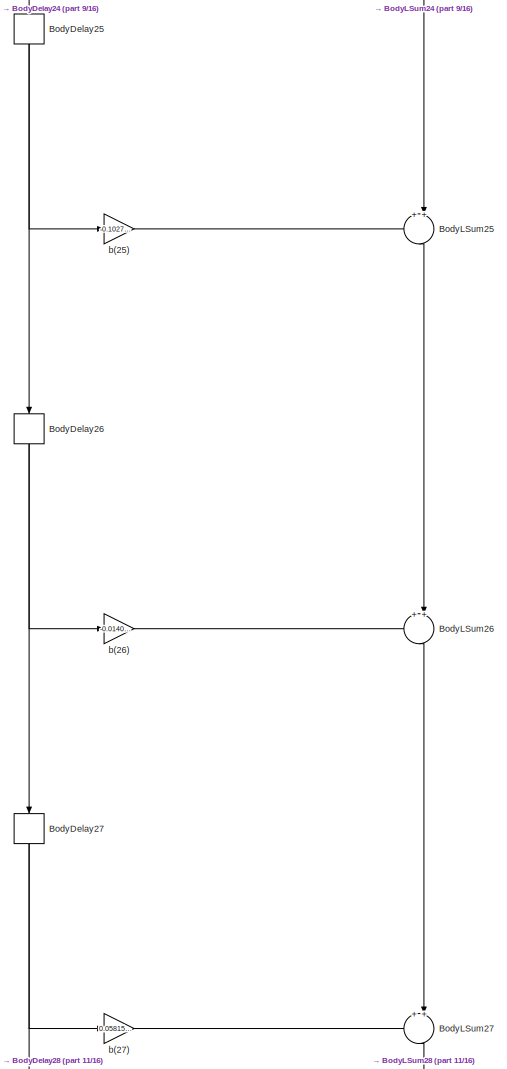
[diagram: misc/Lowpass Filter1/Generated Filter Block - part 10/16, central region]
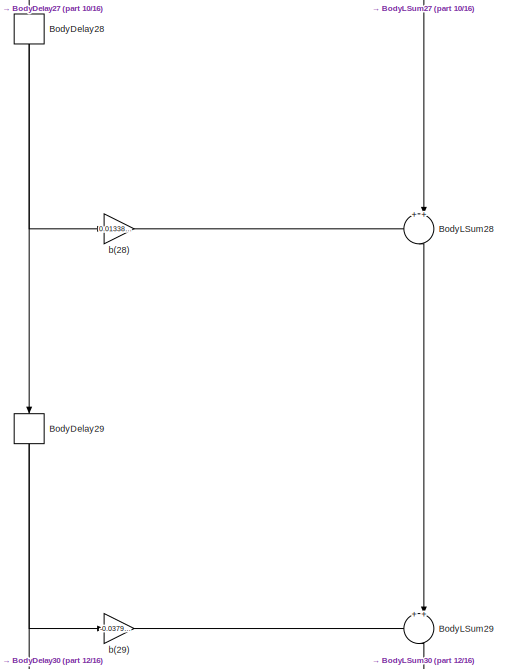
[diagram: misc/Lowpass Filter1/Generated Filter Block - part 11/16, central region]
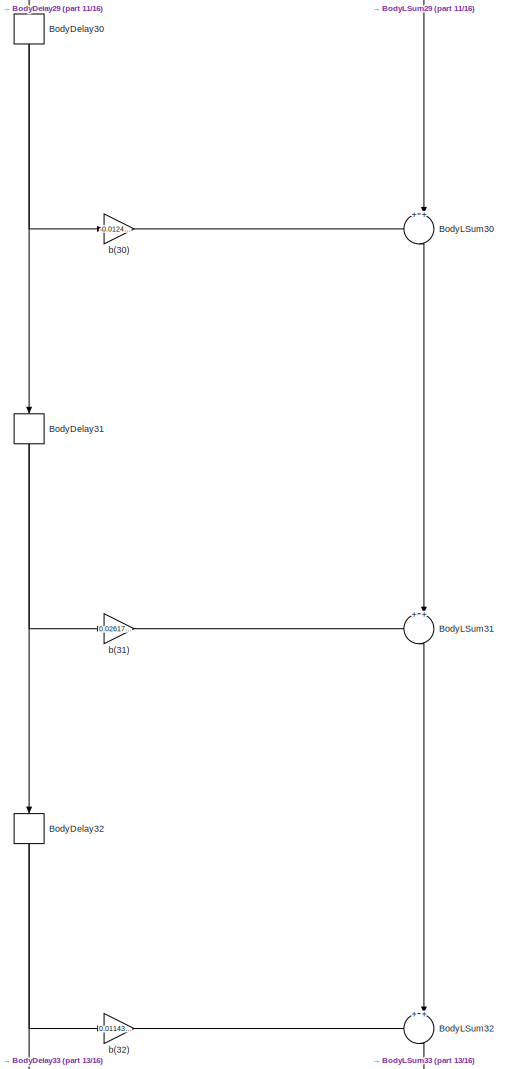
[diagram: misc/Lowpass Filter1/Generated Filter Block - part 12/16, bottom center region]
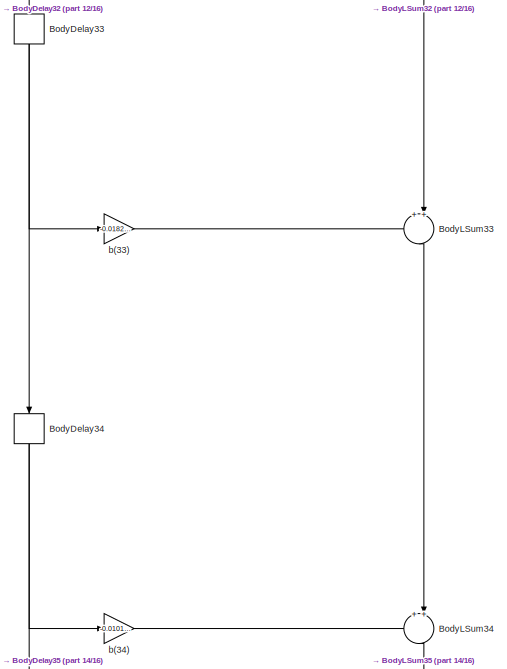
[diagram: misc/Lowpass Filter1/Generated Filter Block - part 13/16, bottom center region]
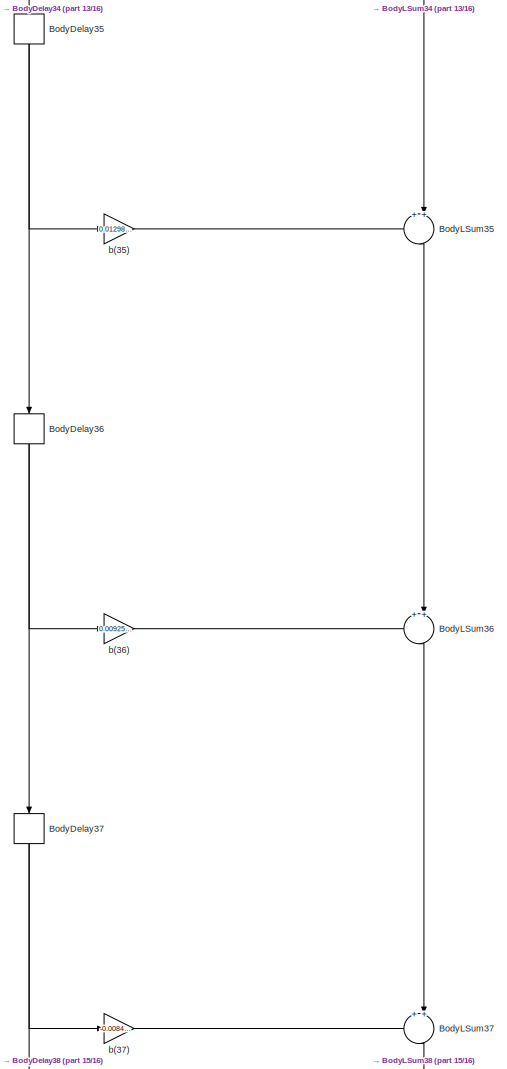
[diagram: misc/Lowpass Filter1/Generated Filter Block - part 14/16, bottom center region]
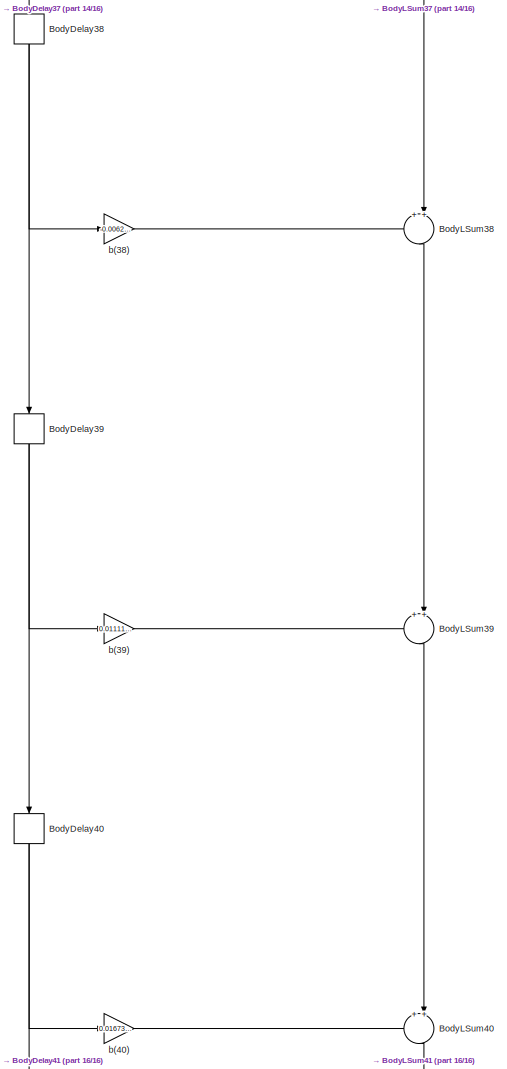
[diagram: misc/Lowpass Filter1/Generated Filter Block - part 15/16, bottom center region]
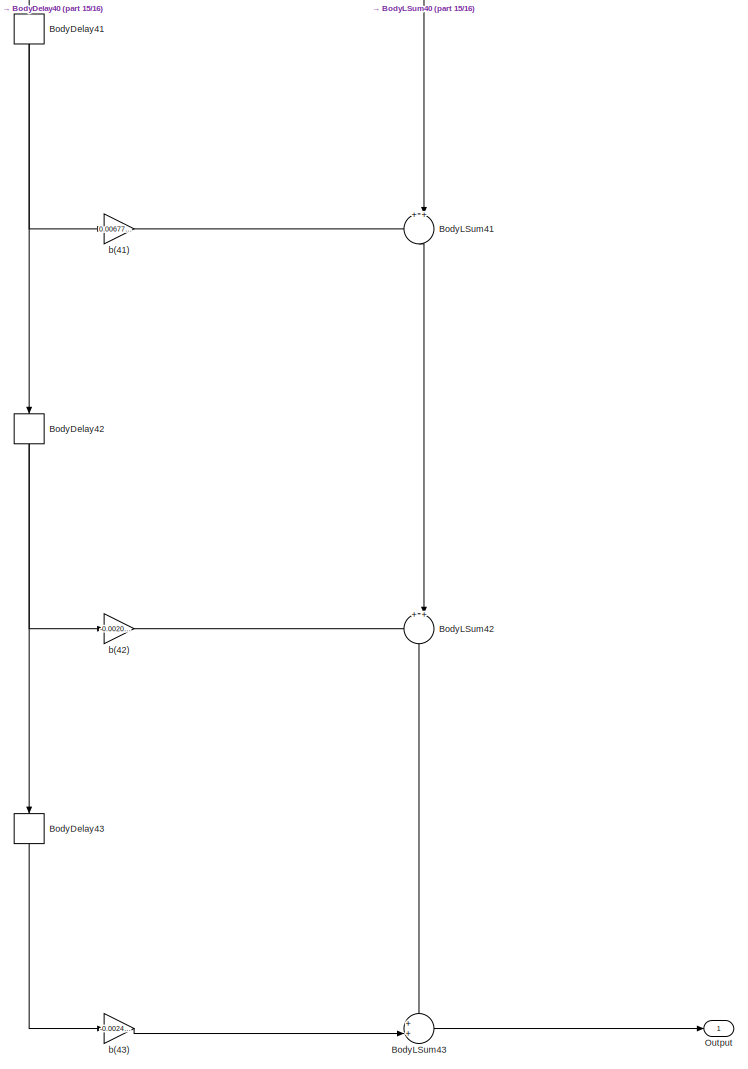
[diagram: misc/Lowpass Filter1/Generated Filter Block - part 16/16, full width, bottom band]
BLOCK [SubSystem] misc/Lowpass Filter1/Generated Filter Block
  ErrorFcn = dspFilterRealizedInBasicElemsAlgLoopErrFcnCallback
  Ports = [1, 1]
  RequestExecContextInheritance = off
  Tag = FilterWizardSubSystem
  UserDataPersistent = on
BLOCK [Delay] misc/Lowpass Filter1/Generated Filter Block/BodyDelay10
  DelayLength = 1
  InitialCondition = 0
  InputPortMap = u0
  NameLocation = right
  Ports = [1, 1]
BLOCK [Delay] misc/Lowpass Filter1/Generated Filter Block/BodyDelay11
  DelayLength = 1
  InitialCondition = 0
  InputPortMap = u0
  NameLocation = right
  Ports = [1, 1]
BLOCK [Delay] misc/Lowpass Filter1/Generated Filter Block/BodyDelay12
  DelayLength = 1
  InitialCondition = 0
  InputPortMap = u0
  NameLocation = right
  Ports = [1, 1]
BLOCK [Delay] misc/Lowpass Filter1/Generated Filter Block/BodyDelay13
  DelayLength = 1
  InitialCondition = 0
  InputPortMap = u0
  NameLocation = right
  Ports = [1, 1]
BLOCK [Delay] misc/Lowpass Filter1/Generated Filter Block/BodyDelay14
  DelayLength = 1
  InitialCondition = 0
  InputPortMap = u0
  NameLocation = right
  Ports = [1, 1]
BLOCK [Delay] misc/Lowpass Filter1/Generated Filter Block/BodyDelay15
  DelayLength = 1
  InitialCondition = 0
  InputPortMap = u0
  NameLocation = right
  Ports = [1, 1]
BLOCK [Delay] misc/Lowpass Filter1/Generated Filter Block/BodyDelay16
  DelayLength = 1
  InitialCondition = 0
  InputPortMap = u0
  NameLocation = right
  Ports = [1, 1]
BLOCK [Delay] misc/Lowpass Filter1/Generated Filter Block/BodyDelay17
  DelayLength = 1
  InitialCondition = 0
  InputPortMap = u0
  NameLocation = right
  Ports = [1, 1]
BLOCK [Delay] misc/Lowpass Filter1/Generated Filter Block/BodyDelay18
  DelayLength = 1
  InitialCondition = 0
  InputPortMap = u0
  NameLocation = right
  Ports = [1, 1]
BLOCK [Delay] misc/Lowpass Filter1/Generated Filter Block/BodyDelay19
  DelayLength = 1
  InitialCondition = 0
  InputPortMap = u0
  NameLocation = right
  Ports = [1, 1]
BLOCK [Delay] misc/Lowpass Filter1/Generated Filter Block/BodyDelay2
  DelayLength = 1
  InitialCondition = 0
  InputPortMap = u0
  NameLocation = right
  Ports = [1, 1]
BLOCK [Delay] misc/Lowpass Filter1/Generated Filter Block/BodyDelay20
  DelayLength = 1
  InitialCondition = 0
  InputPortMap = u0
  NameLocation = right
  Ports = [1, 1]
BLOCK [Delay] misc/Lowpass Filter1/Generated Filter Block/BodyDelay21
  DelayLength = 1
  InitialCondition = 0
  InputPortMap = u0
  NameLocation = right
  Ports = [1, 1]
BLOCK [Delay] misc/Lowpass Filter1/Generated Filter Block/BodyDelay22
  DelayLength = 1
  InitialCondition = 0
  InputPortMap = u0
  NameLocation = right
  Ports = [1, 1]
BLOCK [Delay] misc/Lowpass Filter1/Generated Filter Block/BodyDelay23
  DelayLength = 1
  InitialCondition = 0
  InputPortMap = u0
  NameLocation = right
  Ports = [1, 1]
BLOCK [Delay] misc/Lowpass Filter1/Generated Filter Block/BodyDelay24
  DelayLength = 1
  InitialCondition = 0
  InputPortMap = u0
  NameLocation = right
  Ports = [1, 1]
BLOCK [Delay] misc/Lowpass Filter1/Generated Filter Block/BodyDelay25
  DelayLength = 1
  InitialCondition = 0
  InputPortMap = u0
  NameLocation = right
  Ports = [1, 1]
BLOCK [Delay] misc/Lowpass Filter1/Generated Filter Block/BodyDelay26
  DelayLength = 1
  InitialCondition = 0
  InputPortMap = u0
  NameLocation = right
  Ports = [1, 1]
BLOCK [Delay] misc/Lowpass Filter1/Generated Filter Block/BodyDelay27
  DelayLength = 1
  InitialCondition = 0
  InputPortMap = u0
  NameLocation = right
  Ports = [1, 1]
BLOCK [Delay] misc/Lowpass Filter1/Generated Filter Block/BodyDelay28
  DelayLength = 1
  InitialCondition = 0
  InputPortMap = u0
  NameLocation = right
  Ports = [1, 1]
BLOCK [Delay] misc/Lowpass Filter1/Generated Filter Block/BodyDelay29
  DelayLength = 1
  InitialCondition = 0
  InputPortMap = u0
  NameLocation = right
  Ports = [1, 1]
BLOCK [Delay] misc/Lowpass Filter1/Generated Filter Block/BodyDelay3
  DelayLength = 1
  InitialCondition = 0
  InputPortMap = u0
  NameLocation = right
  Ports = [1, 1]
BLOCK [Delay] misc/Lowpass Filter1/Generated Filter Block/BodyDelay30
  DelayLength = 1
  InitialCondition = 0
  InputPortMap = u0
  NameLocation = right
  Ports = [1, 1]
BLOCK [Delay] misc/Lowpass Filter1/Generated Filter Block/BodyDelay31
  DelayLength = 1
  InitialCondition = 0
  InputPortMap = u0
  NameLocation = right
  Ports = [1, 1]
BLOCK [Delay] misc/Lowpass Filter1/Generated Filter Block/BodyDelay32
  DelayLength = 1
  InitialCondition = 0
  InputPortMap = u0
  NameLocation = right
  Ports = [1, 1]
BLOCK [Delay] misc/Lowpass Filter1/Generated Filter Block/BodyDelay33
  DelayLength = 1
  InitialCondition = 0
  InputPortMap = u0
  NameLocation = right
  Ports = [1, 1]
BLOCK [Delay] misc/Lowpass Filter1/Generated Filter Block/BodyDelay34
  DelayLength = 1
  InitialCondition = 0
  InputPortMap = u0
  NameLocation = right
  Ports = [1, 1]
BLOCK [Delay] misc/Lowpass Filter1/Generated Filter Block/BodyDelay35
  DelayLength = 1
  InitialCondition = 0
  InputPortMap = u0
  NameLocation = right
  Ports = [1, 1]
BLOCK [Delay] misc/Lowpass Filter1/Generated Filter Block/BodyDelay36
  DelayLength = 1
  InitialCondition = 0
  InputPortMap = u0
  NameLocation = right
  Ports = [1, 1]
BLOCK [Delay] misc/Lowpass Filter1/Generated Filter Block/BodyDelay37
  DelayLength = 1
  InitialCondition = 0
  InputPortMap = u0
  NameLocation = right
  Ports = [1, 1]
BLOCK [Delay] misc/Lowpass Filter1/Generated Filter Block/BodyDelay38
  DelayLength = 1
  InitialCondition = 0
  InputPortMap = u0
  NameLocation = right
  Ports = [1, 1]
BLOCK [Delay] misc/Lowpass Filter1/Generated Filter Block/BodyDelay39
  DelayLength = 1
  InitialCondition = 0
  InputPortMap = u0
  NameLocation = right
  Ports = [1, 1]
BLOCK [Delay] misc/Lowpass Filter1/Generated Filter Block/BodyDelay4
  DelayLength = 1
  InitialCondition = 0
  InputPortMap = u0
  NameLocation = right
  Ports = [1, 1]
BLOCK [Delay] misc/Lowpass Filter1/Generated Filter Block/BodyDelay40
  DelayLength = 1
  InitialCondition = 0
  InputPortMap = u0
  NameLocation = right
  Ports = [1, 1]
BLOCK [Delay] misc/Lowpass Filter1/Generated Filter Block/BodyDelay41
  DelayLength = 1
  InitialCondition = 0
  InputPortMap = u0
  NameLocation = right
  Ports = [1, 1]
BLOCK [Delay] misc/Lowpass Filter1/Generated Filter Block/BodyDelay42
  DelayLength = 1
  InitialCondition = 0
  InputPortMap = u0
  NameLocation = right
  Ports = [1, 1]
BLOCK [Delay] misc/Lowpass Filter1/Generated Filter Block/BodyDelay43
  DelayLength = 1
  InitialCondition = 0
  InputPortMap = u0
  NameLocation = right
  Ports = [1, 1]
BLOCK [Delay] misc/Lowpass Filter1/Generated Filter Block/BodyDelay5
  DelayLength = 1
  InitialCondition = 0
  InputPortMap = u0
  NameLocation = right
  Ports = [1, 1]
BLOCK [Delay] misc/Lowpass Filter1/Generated Filter Block/BodyDelay6
  DelayLength = 1
  InitialCondition = 0
  InputPortMap = u0
  NameLocation = right
  Ports = [1, 1]
BLOCK [Delay] misc/Lowpass Filter1/Generated Filter Block/BodyDelay7
  DelayLength = 1
  InitialCondition = 0
  InputPortMap = u0
  NameLocation = right
  Ports = [1, 1]
BLOCK [Delay] misc/Lowpass Filter1/Generated Filter Block/BodyDelay8
  DelayLength = 1
  InitialCondition = 0
  InputPortMap = u0
  NameLocation = right
  Ports = [1, 1]
BLOCK [Delay] misc/Lowpass Filter1/Generated Filter Block/BodyDelay9
  DelayLength = 1
  InitialCondition = 0
  InputPortMap = u0
  NameLocation = right
  Ports = [1, 1]
BLOCK [Sum] misc/Lowpass Filter1/Generated Filter Block/BodyLSum10
  Inputs = ++|
  NameLocation = right
  OutDataTypeStr = Inherit: Same as first input
  Ports = [2, 1]
  RndMeth = Nearest
  SaturateOnIntegerOverflow = on
BLOCK [Sum] misc/Lowpass Filter1/Generated Filter Block/BodyLSum11
  Inputs = ++|
  NameLocation = right
  OutDataTypeStr = Inherit: Same as first input
  Ports = [2, 1]
  RndMeth = Nearest
  SaturateOnIntegerOverflow = on
BLOCK [Sum] misc/Lowpass Filter1/Generated Filter Block/BodyLSum12
  Inputs = ++|
  NameLocation = right
  OutDataTypeStr = Inherit: Same as first input
  Ports = [2, 1]
  RndMeth = Nearest
  SaturateOnIntegerOverflow = on
BLOCK [Sum] misc/Lowpass Filter1/Generated Filter Block/BodyLSum13
  Inputs = ++|
  NameLocation = right
  OutDataTypeStr = Inherit: Same as first input
  Ports = [2, 1]
  RndMeth = Nearest
  SaturateOnIntegerOverflow = on
BLOCK [Sum] misc/Lowpass Filter1/Generated Filter Block/BodyLSum14
  Inputs = ++|
  NameLocation = right
  OutDataTypeStr = Inherit: Same as first input
  Ports = [2, 1]
  RndMeth = Nearest
  SaturateOnIntegerOverflow = on
BLOCK [Sum] misc/Lowpass Filter1/Generated Filter Block/BodyLSum15
  Inputs = ++|
  NameLocation = right
  OutDataTypeStr = Inherit: Same as first input
  Ports = [2, 1]
  RndMeth = Nearest
  SaturateOnIntegerOverflow = on
BLOCK [Sum] misc/Lowpass Filter1/Generated Filter Block/BodyLSum16
  Inputs = ++|
  NameLocation = right
  OutDataTypeStr = Inherit: Same as first input
  Ports = [2, 1]
  RndMeth = Nearest
  SaturateOnIntegerOverflow = on
BLOCK [Sum] misc/Lowpass Filter1/Generated Filter Block/BodyLSum17
  Inputs = ++|
  NameLocation = right
  OutDataTypeStr = Inherit: Same as first input
  Ports = [2, 1]
  RndMeth = Nearest
  SaturateOnIntegerOverflow = on
BLOCK [Sum] misc/Lowpass Filter1/Generated Filter Block/BodyLSum18
  Inputs = ++|
  NameLocation = right
  OutDataTypeStr = Inherit: Same as first input
  Ports = [2, 1]
  RndMeth = Nearest
  SaturateOnIntegerOverflow = on
BLOCK [Sum] misc/Lowpass Filter1/Generated Filter Block/BodyLSum19
  Inputs = ++|
  NameLocation = right
  OutDataTypeStr = Inherit: Same as first input
  Ports = [2, 1]
  RndMeth = Nearest
  SaturateOnIntegerOverflow = on
BLOCK [Sum] misc/Lowpass Filter1/Generated Filter Block/BodyLSum2
  Inputs = ++|
  NameLocation = right
  OutDataTypeStr = Inherit: Same as first input
  Ports = [2, 1]
  RndMeth = Nearest
  SaturateOnIntegerOverflow = on
BLOCK [Sum] misc/Lowpass Filter1/Generated Filter Block/BodyLSum20
  Inputs = ++|
  NameLocation = right
  OutDataTypeStr = Inherit: Same as first input
  Ports = [2, 1]
  RndMeth = Nearest
  SaturateOnIntegerOverflow = on
BLOCK [Sum] misc/Lowpass Filter1/Generated Filter Block/BodyLSum21
  Inputs = ++|
  NameLocation = right
  OutDataTypeStr = Inherit: Same as first input
  Ports = [2, 1]
  RndMeth = Nearest
  SaturateOnIntegerOverflow = on
BLOCK [Sum] misc/Lowpass Filter1/Generated Filter Block/BodyLSum22
  Inputs = ++|
  NameLocation = right
  OutDataTypeStr = Inherit: Same as first input
  Ports = [2, 1]
  RndMeth = Nearest
  SaturateOnIntegerOverflow = on
BLOCK [Sum] misc/Lowpass Filter1/Generated Filter Block/BodyLSum23
  Inputs = ++|
  NameLocation = right
  OutDataTypeStr = Inherit: Same as first input
  Ports = [2, 1]
  RndMeth = Nearest
  SaturateOnIntegerOverflow = on
BLOCK [Sum] misc/Lowpass Filter1/Generated Filter Block/BodyLSum24
  Inputs = ++|
  NameLocation = right
  OutDataTypeStr = Inherit: Same as first input
  Ports = [2, 1]
  RndMeth = Nearest
  SaturateOnIntegerOverflow = on
BLOCK [Sum] misc/Lowpass Filter1/Generated Filter Block/BodyLSum25
  Inputs = ++|
  NameLocation = right
  OutDataTypeStr = Inherit: Same as first input
  Ports = [2, 1]
  RndMeth = Nearest
  SaturateOnIntegerOverflow = on
BLOCK [Sum] misc/Lowpass Filter1/Generated Filter Block/BodyLSum26
  Inputs = ++|
  NameLocation = right
  OutDataTypeStr = Inherit: Same as first input
  Ports = [2, 1]
  RndMeth = Nearest
  SaturateOnIntegerOverflow = on
BLOCK [Sum] misc/Lowpass Filter1/Generated Filter Block/BodyLSum27
  Inputs = ++|
  NameLocation = right
  OutDataTypeStr = Inherit: Same as first input
  Ports = [2, 1]
  RndMeth = Nearest
  SaturateOnIntegerOverflow = on
BLOCK [Sum] misc/Lowpass Filter1/Generated Filter Block/BodyLSum28
  Inputs = ++|
  NameLocation = right
  OutDataTypeStr = Inherit: Same as first input
  Ports = [2, 1]
  RndMeth = Nearest
  SaturateOnIntegerOverflow = on
BLOCK [Sum] misc/Lowpass Filter1/Generated Filter Block/BodyLSum29
  Inputs = ++|
  NameLocation = right
  OutDataTypeStr = Inherit: Same as first input
  Ports = [2, 1]
  RndMeth = Nearest
  SaturateOnIntegerOverflow = on
BLOCK [Sum] misc/Lowpass Filter1/Generated Filter Block/BodyLSum3
  Inputs = ++|
  NameLocation = right
  OutDataTypeStr = Inherit: Same as first input
  Ports = [2, 1]
  RndMeth = Nearest
  SaturateOnIntegerOverflow = on
BLOCK [Sum] misc/Lowpass Filter1/Generated Filter Block/BodyLSum30
  Inputs = ++|
  NameLocation = right
  OutDataTypeStr = Inherit: Same as first input
  Ports = [2, 1]
  RndMeth = Nearest
  SaturateOnIntegerOverflow = on
BLOCK [Sum] misc/Lowpass Filter1/Generated Filter Block/BodyLSum31
  Inputs = ++|
  NameLocation = right
  OutDataTypeStr = Inherit: Same as first input
  Ports = [2, 1]
  RndMeth = Nearest
  SaturateOnIntegerOverflow = on
BLOCK [Sum] misc/Lowpass Filter1/Generated Filter Block/BodyLSum32
  Inputs = ++|
  NameLocation = right
  OutDataTypeStr = Inherit: Same as first input
  Ports = [2, 1]
  RndMeth = Nearest
  SaturateOnIntegerOverflow = on
BLOCK [Sum] misc/Lowpass Filter1/Generated Filter Block/BodyLSum33
  Inputs = ++|
  NameLocation = right
  OutDataTypeStr = Inherit: Same as first input
  Ports = [2, 1]
  RndMeth = Nearest
  SaturateOnIntegerOverflow = on
BLOCK [Sum] misc/Lowpass Filter1/Generated Filter Block/BodyLSum34
  Inputs = ++|
  NameLocation = right
  OutDataTypeStr = Inherit: Same as first input
  Ports = [2, 1]
  RndMeth = Nearest
  SaturateOnIntegerOverflow = on
BLOCK [Sum] misc/Lowpass Filter1/Generated Filter Block/BodyLSum35
  Inputs = ++|
  NameLocation = right
  OutDataTypeStr = Inherit: Same as first input
  Ports = [2, 1]
  RndMeth = Nearest
  SaturateOnIntegerOverflow = on
BLOCK [Sum] misc/Lowpass Filter1/Generated Filter Block/BodyLSum36
  Inputs = ++|
  NameLocation = right
  OutDataTypeStr = Inherit: Same as first input
  Ports = [2, 1]
  RndMeth = Nearest
  SaturateOnIntegerOverflow = on
BLOCK [Sum] misc/Lowpass Filter1/Generated Filter Block/BodyLSum37
  Inputs = ++|
  NameLocation = right
  OutDataTypeStr = Inherit: Same as first input
  Ports = [2, 1]
  RndMeth = Nearest
  SaturateOnIntegerOverflow = on
BLOCK [Sum] misc/Lowpass Filter1/Generated Filter Block/BodyLSum38
  Inputs = ++|
  NameLocation = right
  OutDataTypeStr = Inherit: Same as first input
  Ports = [2, 1]
  RndMeth = Nearest
  SaturateOnIntegerOverflow = on
BLOCK [Sum] misc/Lowpass Filter1/Generated Filter Block/BodyLSum39
  Inputs = ++|
  NameLocation = right
  OutDataTypeStr = Inherit: Same as first input
  Ports = [2, 1]
  RndMeth = Nearest
  SaturateOnIntegerOverflow = on
BLOCK [Sum] misc/Lowpass Filter1/Generated Filter Block/BodyLSum4
  Inputs = ++|
  NameLocation = right
  OutDataTypeStr = Inherit: Same as first input
  Ports = [2, 1]
  RndMeth = Nearest
  SaturateOnIntegerOverflow = on
BLOCK [Sum] misc/Lowpass Filter1/Generated Filter Block/BodyLSum40
  Inputs = ++|
  NameLocation = right
  OutDataTypeStr = Inherit: Same as first input
  Ports = [2, 1]
  RndMeth = Nearest
  SaturateOnIntegerOverflow = on
BLOCK [Sum] misc/Lowpass Filter1/Generated Filter Block/BodyLSum41
  Inputs = ++|
  NameLocation = right
  OutDataTypeStr = Inherit: Same as first input
  Ports = [2, 1]
  RndMeth = Nearest
  SaturateOnIntegerOverflow = on
BLOCK [Sum] misc/Lowpass Filter1/Generated Filter Block/BodyLSum42
  Inputs = ++|
  NameLocation = right
  OutDataTypeStr = Inherit: Same as first input
  Ports = [2, 1]
  RndMeth = Nearest
  SaturateOnIntegerOverflow = on
BLOCK [Sum] misc/Lowpass Filter1/Generated Filter Block/BodyLSum43
  Inputs = ++|
  OutDataTypeStr = Inherit: Same as first input
  Ports = [2, 1]
  RndMeth = Nearest
  SaturateOnIntegerOverflow = on
BLOCK [Sum] misc/Lowpass Filter1/Generated Filter Block/BodyLSum5
  Inputs = ++|
  NameLocation = right
  OutDataTypeStr = Inherit: Same as first input
  Ports = [2, 1]
  RndMeth = Nearest
  SaturateOnIntegerOverflow = on
BLOCK [Sum] misc/Lowpass Filter1/Generated Filter Block/BodyLSum6
  Inputs = ++|
  NameLocation = right
  OutDataTypeStr = Inherit: Same as first input
  Ports = [2, 1]
  RndMeth = Nearest
  SaturateOnIntegerOverflow = on
BLOCK [Sum] misc/Lowpass Filter1/Generated Filter Block/BodyLSum7
  Inputs = ++|
  NameLocation = right
  OutDataTypeStr = Inherit: Same as first input
  Ports = [2, 1]
  RndMeth = Nearest
  SaturateOnIntegerOverflow = on
BLOCK [Sum] misc/Lowpass Filter1/Generated Filter Block/BodyLSum8
  Inputs = ++|
  NameLocation = right
  OutDataTypeStr = Inherit: Same as first input
  Ports = [2, 1]
  RndMeth = Nearest
  SaturateOnIntegerOverflow = on
BLOCK [Sum] misc/Lowpass Filter1/Generated Filter Block/BodyLSum9
  Inputs = ++|
  NameLocation = right
  OutDataTypeStr = Inherit: Same as first input
  Ports = [2, 1]
  RndMeth = Nearest
  SaturateOnIntegerOverflow = on
BLOCK [Inport] misc/Lowpass Filter1/Generated Filter Block/Input
BLOCK [Outport] misc/Lowpass Filter1/Generated Filter Block/Output
BLOCK [Gain] misc/Lowpass Filter1/Generated Filter Block/b(1)
  Gain = -0.00242287385232693503
  OutDataTypeStr = Inherit: Same as input
  ParamDataTypeStr = double
  RndMeth = Nearest
  SaturateOnIntegerOverflow = on
BLOCK [Gain] misc/Lowpass Filter1/Generated Filter Block/b(10)
  Gain = -0.0101212347032790025
  OutDataTypeStr = Inherit: Same as input
  ParamDataTypeStr = double
  RndMeth = Nearest
  SaturateOnIntegerOverflow = on
BLOCK [Gain] misc/Lowpass Filter1/Generated Filter Block/b(11)
  Gain = -0.0182735187337824609
  OutDataTypeStr = Inherit: Same as input
  ParamDataTypeStr = double
  RndMeth = Nearest
  SaturateOnIntegerOverflow = on
BLOCK [Gain] misc/Lowpass Filter1/Generated Filter Block/b(12)
  Gain = 0.0114319620717779676
  OutDataTypeStr = Inherit: Same as input
  ParamDataTypeStr = double
  RndMeth = Nearest
  SaturateOnIntegerOverflow = on
BLOCK [Gain] misc/Lowpass Filter1/Generated Filter Block/b(13)
  Gain = 0.026175888580407581
  OutDataTypeStr = Inherit: Same as input
  ParamDataTypeStr = double
  RndMeth = Nearest
  SaturateOnIntegerOverflow = on
BLOCK [Gain] misc/Lowpass Filter1/Generated Filter Block/b(14)
  Gain = -0.0124890278353230171
  OutDataTypeStr = Inherit: Same as input
  ParamDataTypeStr = double
  RndMeth = Nearest
  SaturateOnIntegerOverflow = on
BLOCK [Gain] misc/Lowpass Filter1/Generated Filter Block/b(15)
  Gain = -0.0379966231454636413
  OutDataTypeStr = Inherit: Same as input
  ParamDataTypeStr = double
  RndMeth = Nearest
  SaturateOnIntegerOverflow = on
BLOCK [Gain] misc/Lowpass Filter1/Generated Filter Block/b(16)
  Gain = 0.0133889451993669008
  OutDataTypeStr = Inherit: Same as input
  ParamDataTypeStr = double
  RndMeth = Nearest
  SaturateOnIntegerOverflow = on
BLOCK [Gain] misc/Lowpass Filter1/Generated Filter Block/b(17)
  Gain = 0.0581554658147298703
  OutDataTypeStr = Inherit: Same as input
  ParamDataTypeStr = double
  RndMeth = Nearest
  SaturateOnIntegerOverflow = on
BLOCK [Gain] misc/Lowpass Filter1/Generated Filter Block/b(18)
  Gain = -0.0140480435158088935
  OutDataTypeStr = Inherit: Same as input
  ParamDataTypeStr = double
  RndMeth = Nearest
  SaturateOnIntegerOverflow = on
BLOCK [Gain] misc/Lowpass Filter1/Generated Filter Block/b(19)
  Gain = -0.102724668578821676
  OutDataTypeStr = Inherit: Same as input
  ParamDataTypeStr = double
  RndMeth = Nearest
  SaturateOnIntegerOverflow = on
BLOCK [Gain] misc/Lowpass Filter1/Generated Filter Block/b(2)
  Gain = -0.00208324498207925878
  OutDataTypeStr = Inherit: Same as input
  ParamDataTypeStr = double
  RndMeth = Nearest
  SaturateOnIntegerOverflow = on
BLOCK [Gain] misc/Lowpass Filter1/Generated Filter Block/b(20)
  Gain = 0.0144622757712384552
  OutDataTypeStr = Inherit: Same as input
  ParamDataTypeStr = double
  RndMeth = Nearest
  SaturateOnIntegerOverflow = on
BLOCK [Gain] misc/Lowpass Filter1/Generated Filter Block/b(21)
  Gain = 0.317166497217694909
  OutDataTypeStr = Inherit: Same as input
  ParamDataTypeStr = double
  RndMeth = Nearest
  SaturateOnIntegerOverflow = on
BLOCK [Gain] misc/Lowpass Filter1/Generated Filter Block/b(22)
  Gain = 0.485387646787325211
  OutDataTypeStr = Inherit: Same as input
  ParamDataTypeStr = double
  RndMeth = Nearest
  SaturateOnIntegerOverflow = on
BLOCK [Gain] misc/Lowpass Filter1/Generated Filter Block/b(23)
  Gain = 0.317166497217694909
  OutDataTypeStr = Inherit: Same as input
  ParamDataTypeStr = double
  RndMeth = Nearest
  SaturateOnIntegerOverflow = on
BLOCK [Gain] misc/Lowpass Filter1/Generated Filter Block/b(24)
  Gain = 0.0144622757712384552
  OutDataTypeStr = Inherit: Same as input
  ParamDataTypeStr = double
  RndMeth = Nearest
  SaturateOnIntegerOverflow = on
BLOCK [Gain] misc/Lowpass Filter1/Generated Filter Block/b(25)
  Gain = -0.102724668578821676
  OutDataTypeStr = Inherit: Same as input
  ParamDataTypeStr = double
  RndMeth = Nearest
  SaturateOnIntegerOverflow = on
BLOCK [Gain] misc/Lowpass Filter1/Generated Filter Block/b(26)
  Gain = -0.0140480435158088935
  OutDataTypeStr = Inherit: Same as input
  ParamDataTypeStr = double
  RndMeth = Nearest
  SaturateOnIntegerOverflow = on
BLOCK [Gain] misc/Lowpass Filter1/Generated Filter Block/b(27)
  Gain = 0.0581554658147298703
  OutDataTypeStr = Inherit: Same as input
  ParamDataTypeStr = double
  RndMeth = Nearest
  SaturateOnIntegerOverflow = on
BLOCK [Gain] misc/Lowpass Filter1/Generated Filter Block/b(28)
  Gain = 0.0133889451993669008
  OutDataTypeStr = Inherit: Same as input
  ParamDataTypeStr = double
  RndMeth = Nearest
  SaturateOnIntegerOverflow = on
BLOCK [Gain] misc/Lowpass Filter1/Generated Filter Block/b(29)
  Gain = -0.0379966231454636413
  OutDataTypeStr = Inherit: Same as input
  ParamDataTypeStr = double
  RndMeth = Nearest
  SaturateOnIntegerOverflow = on
BLOCK [Gain] misc/Lowpass Filter1/Generated Filter Block/b(3)
  Gain = 0.00677034464011870129
  OutDataTypeStr = Inherit: Same as input
  ParamDataTypeStr = double
  RndMeth = Nearest
  SaturateOnIntegerOverflow = on
BLOCK [Gain] misc/Lowpass Filter1/Generated Filter Block/b(30)
  Gain = -0.0124890278353230171
  OutDataTypeStr = Inherit: Same as input
  ParamDataTypeStr = double
  RndMeth = Nearest
  SaturateOnIntegerOverflow = on
BLOCK [Gain] misc/Lowpass Filter1/Generated Filter Block/b(31)
  Gain = 0.026175888580407581
  OutDataTypeStr = Inherit: Same as input
  ParamDataTypeStr = double
  RndMeth = Nearest
  SaturateOnIntegerOverflow = on
BLOCK [Gain] misc/Lowpass Filter1/Generated Filter Block/b(32)
  Gain = 0.0114319620717779676
  OutDataTypeStr = Inherit: Same as input
  ParamDataTypeStr = double
  RndMeth = Nearest
  SaturateOnIntegerOverflow = on
BLOCK [Gain] misc/Lowpass Filter1/Generated Filter Block/b(33)
  Gain = -0.0182735187337824609
  OutDataTypeStr = Inherit: Same as input
  ParamDataTypeStr = double
  RndMeth = Nearest
  SaturateOnIntegerOverflow = on
BLOCK [Gain] misc/Lowpass Filter1/Generated Filter Block/b(34)
  Gain = -0.0101212347032790025
  OutDataTypeStr = Inherit: Same as input
  ParamDataTypeStr = double
  RndMeth = Nearest
  SaturateOnIntegerOverflow = on
BLOCK [Gain] misc/Lowpass Filter1/Generated Filter Block/b(35)
  Gain = 0.0129828838088557105
  OutDataTypeStr = Inherit: Same as input
  ParamDataTypeStr = double
  RndMeth = Nearest
  SaturateOnIntegerOverflow = on
BLOCK [Gain] misc/Lowpass Filter1/Generated Filter Block/b(36)
  Gain = 0.00925679761513798632
  OutDataTypeStr = Inherit: Same as input
  ParamDataTypeStr = double
  RndMeth = Nearest
  SaturateOnIntegerOverflow = on
BLOCK [Gain] misc/Lowpass Filter1/Generated Filter Block/b(37)
  Gain = -0.00840161718602687457
  OutDataTypeStr = Inherit: Same as input
  ParamDataTypeStr = double
  RndMeth = Nearest
  SaturateOnIntegerOverflow = on
BLOCK [Gain] misc/Lowpass Filter1/Generated Filter Block/b(38)
  Gain = -0.00623114541414451859
  OutDataTypeStr = Inherit: Same as input
  ParamDataTypeStr = double
  RndMeth = Nearest
  SaturateOnIntegerOverflow = on
BLOCK [Gain] misc/Lowpass Filter1/Generated Filter Block/b(39)
  Gain = 0.0111170760810775926
  OutDataTypeStr = Inherit: Same as input
  ParamDataTypeStr = double
  RndMeth = Nearest
  SaturateOnIntegerOverflow = on
BLOCK [Gain] misc/Lowpass Filter1/Generated Filter Block/b(4)
  Gain = 0.016731945423489044
  OutDataTypeStr = Inherit: Same as input
  ParamDataTypeStr = double
  RndMeth = Nearest
  SaturateOnIntegerOverflow = on
BLOCK [Gain] misc/Lowpass Filter1/Generated Filter Block/b(40)
  Gain = 0.016731945423489044
  OutDataTypeStr = Inherit: Same as input
  ParamDataTypeStr = double
  RndMeth = Nearest
  SaturateOnIntegerOverflow = on
BLOCK [Gain] misc/Lowpass Filter1/Generated Filter Block/b(41)
  Gain = 0.00677034464011870129
  OutDataTypeStr = Inherit: Same as input
  ParamDataTypeStr = double
  RndMeth = Nearest
  SaturateOnIntegerOverflow = on
BLOCK [Gain] misc/Lowpass Filter1/Generated Filter Block/b(42)
  Gain = -0.00208324498207925878
  OutDataTypeStr = Inherit: Same as input
  ParamDataTypeStr = double
  RndMeth = Nearest
  SaturateOnIntegerOverflow = on
BLOCK [Gain] misc/Lowpass Filter1/Generated Filter Block/b(43)
  Gain = -0.00242287385232693503
  OutDataTypeStr = Inherit: Same as input
  ParamDataTypeStr = double
  RndMeth = Nearest
  SaturateOnIntegerOverflow = on
BLOCK [Gain] misc/Lowpass Filter1/Generated Filter Block/b(5)
  Gain = 0.0111170760810775926
  OutDataTypeStr = Inherit: Same as input
  ParamDataTypeStr = double
  RndMeth = Nearest
  SaturateOnIntegerOverflow = on
BLOCK [Gain] misc/Lowpass Filter1/Generated Filter Block/b(6)
  Gain = -0.00623114541414451859
  OutDataTypeStr = Inherit: Same as input
  ParamDataTypeStr = double
  RndMeth = Nearest
  SaturateOnIntegerOverflow = on
BLOCK [Gain] misc/Lowpass Filter1/Generated Filter Block/b(7)
  Gain = -0.00840161718602687457
  OutDataTypeStr = Inherit: Same as input
  ParamDataTypeStr = double
  RndMeth = Nearest
  SaturateOnIntegerOverflow = on
BLOCK [Gain] misc/Lowpass Filter1/Generated Filter Block/b(8)
  Gain = 0.00925679761513798632
  OutDataTypeStr = Inherit: Same as input
  ParamDataTypeStr = double
  RndMeth = Nearest
  SaturateOnIntegerOverflow = on
BLOCK [Gain] misc/Lowpass Filter1/Generated Filter Block/b(9)
  Gain = 0.0129828838088557105
  OutDataTypeStr = Inherit: Same as input
  ParamDataTypeStr = double
  RndMeth = Nearest
  SaturateOnIntegerOverflow = on
BLOCK [Inport] misc/Lowpass Filter1/In
BLOCK [Outport] misc/Lowpass Filter1/Out
BLOCK [Reference] misc/Orientation  REF=androidsensorlib/Orientation
  Commented = on
  Ports = [0, 1]
  SourceBlock = androidsensorlib/Orientation
  SourceProductBaseCode = ANDROID
  SourceType = codertarget.internal.androidOrientation
BLOCK [Outport] misc/Out1
BLOCK [Outport] misc/Out2
  Port = 2
BLOCK [Reference] misc/Pressure Altitude  REF=aerolibatmos2/Pressure Altitude
  Commented = on
  Ports = [1, 1]
  SourceBlock = aerolibatmos2/Pressure Altitude
  SourceProductBaseCode = AE
  SourceType = Pressure Altitude
BLOCK [Reference] misc/Pressure Sensor  REF=androidsensorlib/Pressure Sensor
  Commented = on
  Ports = [0, 1]
  SourceBlock = androidsensorlib/Pressure Sensor
  SourceProductBaseCode = ANDROID
  SourceType = codertarget.internal.androidPressure
BLOCK [Reference] misc/Static Orientation  REF=androiduilib/Data Display
  Commented = on
  Ports = [1]
  SourceBlock = androiduilib/Data Display
  SourceProductBaseCode = ANDROID
  SourceType = codertarget.internal.androidDataDisplay
BLOCK [Terminator] misc/Terminator6
  Commented = on
ANNOTATION Flight_Controller/Attitude_Control: Attitude Control
LINE Android_Input/Communiction/BLE Receive:1 -> Android_Input/Communiction/Demux:1
LINE Android_Input/Communiction/BLE Receive:2 -> Android_Input/Communiction/Terminator:1
LINE Android_Input/Communiction/Data Type Conversion1:1 -> Android_Input/Communiction/Ch 2:1
LINE Android_Input/Communiction/Data Type Conversion2:1 -> Android_Input/Communiction/Ch 3:1
LINE Android_Input/Communiction/Data Type Conversion3:1 -> Android_Input/Communiction/Ch 4:1
LINE Android_Input/Communiction/Data Type Conversion4:1 -> Android_Input/Communiction/Ch 5:1
LINE Android_Input/Communiction/Data Type Conversion:1 -> Android_Input/Communiction/Ch 1:1
LINE Android_Input/Communiction/Demux:1 -> Android_Input/Communiction/Data Type Conversion:1
LINE Android_Input/Communiction/Demux:2 -> Android_Input/Communiction/Data Type Conversion1:1
LINE Android_Input/Communiction/Demux:3 -> Android_Input/Communiction/Data Type Conversion2:1
LINE Android_Input/Communiction/Demux:4 -> Android_Input/Communiction/Data Type Conversion3:1
LINE Android_Input/Communiction/Demux:5 -> Android_Input/Communiction/Data Type Conversion4:1
LINE Android_Input/Communiction:1 -> Android_Input/Ch 1:1
LINE Android_Input/Communiction:2 -> Android_Input/Ch 2:1
LINE Android_Input/Communiction:3 -> Android_Input/Ch 3:1
LINE Android_Input/Communiction:4 -> Android_Input/Ch 4:1
LINE Android_Input/Communiction:5 -> Android_Input/Ch 5:1
LINE Android_Input/Sensors/Accelerometer:1 -> Android_Input/Sensors/Out1:1
LINE Android_Input/Sensors/Accelerometer:2 -> Android_Input/Sensors/Gain5:1
LINE Android_Input/Sensors/Accelerometer:3 -> Android_Input/Sensors/Gain1:1
LINE Android_Input/Sensors/Data Type Conversion3:1 -> Android_Input/Sensors/Out5:1
LINE Android_Input/Sensors/Data Type Conversion8:1 -> Android_Input/Sensors/Out6:1
LINE Android_Input/Sensors/Data Type Conversion:1 -> Android_Input/Sensors/Out4:1
LINE Android_Input/Sensors/Demux1:1 -> Android_Input/Sensors/Out7:1
LINE Android_Input/Sensors/Demux1:2 -> Android_Input/Sensors/Gain8:1
LINE Android_Input/Sensors/Demux1:3 -> Android_Input/Sensors/Gain9:1
LINE Android_Input/Sensors/Gain1:1 -> Android_Input/Sensors/Out3:1
LINE Android_Input/Sensors/Gain2:1 -> Android_Input/Sensors/Data Type Conversion8:1
LINE Android_Input/Sensors/Gain5:1 -> Android_Input/Sensors/Out2:1
LINE Android_Input/Sensors/Gain6:1 -> Android_Input/Sensors/Data Type Conversion3:1
LINE Android_Input/Sensors/Gain8:1 -> Android_Input/Sensors/Out8:1
LINE Android_Input/Sensors/Gain9:1 -> Android_Input/Sensors/Out9:1
LINE Android_Input/Sensors/Gyroscope:1 -> Android_Input/Sensors/Data Type Conversion:1
LINE Android_Input/Sensors/Gyroscope:2 -> Android_Input/Sensors/Gain6:1
LINE Android_Input/Sensors/Gyroscope:3 -> Android_Input/Sensors/Gain2:1
LINE Android_Input/Sensors/Magnetometer1:1 -> Android_Input/Sensors/Demux1:1
LINE Android_Input/Sensors:1 -> Android_Input/Out1:1
LINE Android_Input/Sensors:2 -> Android_Input/Out2:1
LINE Android_Input/Sensors:3 -> Android_Input/Out3:1
LINE Android_Input/Sensors:4 -> Android_Input/Out4:1
LINE Android_Input/Sensors:5 -> Android_Input/Out5:1
LINE Android_Input/Sensors:6 -> Android_Input/Out6:1
LINE Android_Input/Sensors:7 -> Android_Input/Out7:1
LINE Android_Input/Sensors:8 -> Android_Input/Out8:1
LINE Android_Input/Sensors:9 -> Android_Input/Out9:1
LINE Android_Input:1 -> Goto2:1
LINE Android_Input:10 -> Flight_Controller:11
LINE Android_Input:11 -> Flight_Controller:12
LINE Android_Input:12 -> Flight_Controller:13
LINE Android_Input:13 -> Flight_Controller:14
LINE Android_Input:14 -> Flight_Controller:15
LINE Android_Input:2 -> Goto3:1
LINE Android_Input:3 -> Goto4:1
LINE Android_Input:4 -> Goto:1
LINE Android_Input:5 -> Goto1:1
LINE Android_Input:6 -> Goto11:1
LINE Android_Input:7 -> Goto12:1
LINE Android_Input:8 -> Goto14:1
LINE Android_Input:9 -> Goto15:1
LINE BuiltIn AHRS/AHRS:1 -> BuiltIn AHRS/Data Type Conversion6:1
LINE BuiltIn AHRS/AHRS:2 -> BuiltIn AHRS/AHRS Ang Vel:1
LINE BuiltIn AHRS/Data Type Conversion6:1 -> BuiltIn AHRS/Quaternions to Rodrigues:1
LINE BuiltIn AHRS/From13:1 -> BuiltIn AHRS/Mux4:2
LINE BuiltIn AHRS/From14:1 -> BuiltIn AHRS/Mux4:3
LINE BuiltIn AHRS/From15:1 -> BuiltIn AHRS/Mux4:1
LINE BuiltIn AHRS/From16:1 -> BuiltIn AHRS/Gain5:1
LINE BuiltIn AHRS/From17:1 -> BuiltIn AHRS/Mux3:3
LINE BuiltIn AHRS/From18:1 -> BuiltIn AHRS/Mux3:1
NET BuiltIn AHRS/From19:1 -> BuiltIn AHRS/AHRS:3, BuiltIn AHRS/Mag:1
LINE BuiltIn AHRS/Gain5:1 -> BuiltIn AHRS/Mux3:2
LINE BuiltIn AHRS/Gain6:1 -> BuiltIn AHRS/Transpose1:1
LINE BuiltIn AHRS/Mux3:1 -> BuiltIn AHRS/Transpose:1
LINE BuiltIn AHRS/Mux4:1 -> BuiltIn AHRS/Gain6:1
LINE BuiltIn AHRS/Quaternions to Rodrigues:1 -> BuiltIn AHRS/Radians to Degrees:1
NET BuiltIn AHRS/Radians to Degrees:1 -> BuiltIn AHRS/AHRS Attitude:1, BuiltIn AHRS/att:1
NET BuiltIn AHRS/Transpose1:1 -> BuiltIn AHRS/AHRS:1, BuiltIn AHRS/Accel:1
NET BuiltIn AHRS/Transpose:1 -> BuiltIn AHRS/AHRS:2, BuiltIn AHRS/Gyro:1
LINE Constant1:1 -> Flight_Controller:10
LINE Flight_Controller/Attitude_Control/ARMINGControl/Compare To Constant3:1 -> Flight_Controller/Attitude_Control/ARMINGControl/Out1:1
LINE Flight_Controller/Attitude_Control/ARMINGControl/In1:1 -> Flight_Controller/Attitude_Control/ARMINGControl/Compare To Constant3:1
LINE Flight_Controller/Attitude_Control/ARMINGControl:1 -> Flight_Controller/Attitude_Control/ARM Control:1
LINE Flight_Controller/Attitude_Control/AttitudeControl/1 // rad_max:1 -> Flight_Controller/Attitude_Control/AttitudeControl/Demux10:1
LINE Flight_Controller/Attitude_Control/AttitudeControl/1 // rads_max:1 -> Flight_Controller/Attitude_Control/AttitudeControl/Demux13:1
LINE Flight_Controller/Attitude_Control/AttitudeControl/1 // rads_max_yaw:1 -> Flight_Controller/Attitude_Control/AttitudeControl/Sum17:1
LINE Flight_Controller/Attitude_Control/AttitudeControl/Demux10:1 -> Flight_Controller/Attitude_Control/AttitudeControl/Sum18:1
LINE Flight_Controller/Attitude_Control/AttitudeControl/Demux10:2 -> Flight_Controller/Attitude_Control/AttitudeControl/Sum19:1
LINE Flight_Controller/Attitude_Control/AttitudeControl/Demux12:1 -> Flight_Controller/Attitude_Control/AttitudeControl/Sum18:2
LINE Flight_Controller/Attitude_Control/AttitudeControl/Demux12:2 -> Flight_Controller/Attitude_Control/AttitudeControl/Sum19:2
LINE Flight_Controller/Attitude_Control/AttitudeControl/Demux13:1 -> Flight_Controller/Attitude_Control/AttitudeControl/Sum21:1
LINE Flight_Controller/Attitude_Control/AttitudeControl/Demux13:2 -> Flight_Controller/Attitude_Control/AttitudeControl/Sum22:1
LINE Flight_Controller/Attitude_Control/AttitudeControl/Demux16:1 -> Flight_Controller/Attitude_Control/AttitudeControl/Sum21:2
LINE Flight_Controller/Attitude_Control/AttitudeControl/Demux16:2 -> Flight_Controller/Attitude_Control/AttitudeControl/Sum22:2
LINE Flight_Controller/Attitude_Control/AttitudeControl/Mux13:1 -> Flight_Controller/Attitude_Control/AttitudeControl/1 // rads_max:1
LINE Flight_Controller/Attitude_Control/AttitudeControl/Mux15:1 -> Flight_Controller/Attitude_Control/AttitudeControl/1 // rad_max:1
LINE Flight_Controller/Attitude_Control/AttitudeControl/Mux22:1 -> Flight_Controller/Attitude_Control/AttitudeControl/Demux16:1
LINE Flight_Controller/Attitude_Control/AttitudeControl/Sum17:1 -> Flight_Controller/Attitude_Control/AttitudeControl/yaw_rate:1
LINE Flight_Controller/Attitude_Control/AttitudeControl/Sum18:1 -> Flight_Controller/Attitude_Control/AttitudeControl/roll_attitude:1
LINE Flight_Controller/Attitude_Control/AttitudeControl/Sum19:1 -> Flight_Controller/Attitude_Control/AttitudeControl/pitch_attitude:1
LINE Flight_Controller/Attitude_Control/AttitudeControl/Sum21:1 -> Flight_Controller/Attitude_Control/AttitudeControl/roll_rate:1
LINE Flight_Controller/Attitude_Control/AttitudeControl/Sum22:1 -> Flight_Controller/Attitude_Control/AttitudeControl/pitch_rate:1
LINE Flight_Controller/Attitude_Control/AttitudeControl/p:1 -> Flight_Controller/Attitude_Control/AttitudeControl/Mux13:1
LINE Flight_Controller/Attitude_Control/AttitudeControl/phi:1 -> Flight_Controller/Attitude_Control/AttitudeControl/Mux15:1
LINE Flight_Controller/Attitude_Control/AttitudeControl/pitch_attitude:1 -> Flight_Controller/Attitude_Control/AttitudeControl/Mux22:2
LINE Flight_Controller/Attitude_Control/AttitudeControl/pitch_rate:1 -> Flight_Controller/Attitude_Control/AttitudeControl/Pitch:1
LINE Flight_Controller/Attitude_Control/AttitudeControl/q:1 -> Flight_Controller/Attitude_Control/AttitudeControl/Mux13:2
LINE Flight_Controller/Attitude_Control/AttitudeControl/r:1 -> Flight_Controller/Attitude_Control/AttitudeControl/1 // rads_max_yaw:1
LINE Flight_Controller/Attitude_Control/AttitudeControl/roll_attitude:1 -> Flight_Controller/Attitude_Control/AttitudeControl/Mux22:1
LINE Flight_Controller/Attitude_Control/AttitudeControl/roll_pitch:1 -> Flight_Controller/Attitude_Control/AttitudeControl/Demux12:1
LINE Flight_Controller/Attitude_Control/AttitudeControl/roll_rate:1 -> Flight_Controller/Attitude_Control/AttitudeControl/Roll:1
LINE Flight_Controller/Attitude_Control/AttitudeControl/theta:1 -> Flight_Controller/Attitude_Control/AttitudeControl/Mux15:2
LINE Flight_Controller/Attitude_Control/AttitudeControl/yaw:1 -> Flight_Controller/Attitude_Control/AttitudeControl/Sum17:2
LINE Flight_Controller/Attitude_Control/AttitudeControl/yaw_rate:1 -> Flight_Controller/Attitude_Control/AttitudeControl/Yaw:1
LINE Flight_Controller/Attitude_Control/AttitudeControl:1 -> Flight_Controller/Attitude_Control/pwm_out1:1
LINE Flight_Controller/Attitude_Control/AttitudeControl:2 -> Flight_Controller/Attitude_Control/pwm_out1:2
LINE Flight_Controller/Attitude_Control/AttitudeControl:3 -> Flight_Controller/Attitude_Control/pwm_out1:3
LINE Flight_Controller/Attitude_Control/Ch 1:1 -> Flight_Controller/Attitude_Control/InputConditioning:1
LINE Flight_Controller/Attitude_Control/Ch 2:1 -> Flight_Controller/Attitude_Control/InputConditioning:2
LINE Flight_Controller/Attitude_Control/Ch 3:1 -> Flight_Controller/Attitude_Control/InputConditioning:3
LINE Flight_Controller/Attitude_Control/Ch 4:1 -> Flight_Controller/Attitude_Control/InputConditioning:4
LINE Flight_Controller/Attitude_Control/Ch 5:1 -> Flight_Controller/Attitude_Control/ARMINGControl:1
LINE Flight_Controller/Attitude_Control/In1:1 -> Flight_Controller/Attitude_Control/AttitudeControl:1
LINE Flight_Controller/Attitude_Control/In2:1 -> Flight_Controller/Attitude_Control/AttitudeControl:2
LINE Flight_Controller/Attitude_Control/Inport2:1 -> Flight_Controller/Attitude_Control/AttitudeControl:6
LINE Flight_Controller/Attitude_Control/Inport3:1 -> Flight_Controller/Attitude_Control/AttitudeControl:7
LINE Flight_Controller/Attitude_Control/Inport5:1 -> Flight_Controller/Attitude_Control/AttitudeControl:5
LINE Flight_Controller/Attitude_Control/InputConditioning/Data Type Conversion1:1 -> Flight_Controller/Attitude_Control/InputConditioning/Fcn5:1
LINE Flight_Controller/Attitude_Control/InputConditioning/Data Type Conversion2:1 -> Flight_Controller/Attitude_Control/InputConditioning/Fcn7:1
LINE Flight_Controller/Attitude_Control/InputConditioning/Data Type Conversion3:1 -> Flight_Controller/Attitude_Control/InputConditioning/Fcn6:1
LINE Flight_Controller/Attitude_Control/InputConditioning/Data Type Conversion:1 -> Flight_Controller/Attitude_Control/InputConditioning/Fcn2:1
LINE Flight_Controller/Attitude_Control/InputConditioning/Fcn2:1 -> Flight_Controller/Attitude_Control/InputConditioning/Saturation9:1
LINE Flight_Controller/Attitude_Control/InputConditioning/Fcn5:1 -> Flight_Controller/Attitude_Control/InputConditioning/Saturation8:1
LINE Flight_Controller/Attitude_Control/InputConditioning/Fcn6:1 -> Flight_Controller/Attitude_Control/InputConditioning/Saturation10:1
LINE Flight_Controller/Attitude_Control/InputConditioning/Fcn7:1 -> Flight_Controller/Attitude_Control/InputConditioning/Saturation7:1
LINE Flight_Controller/Attitude_Control/InputConditioning/Gain2:1 -> Flight_Controller/Attitude_Control/InputConditioning/Roll_Pitch:1
LINE Flight_Controller/Attitude_Control/InputConditioning/Mux21:1 -> Flight_Controller/Attitude_Control/InputConditioning/Gain2:1
LINE Flight_Controller/Attitude_Control/InputConditioning/Saturation10:1 -> Flight_Controller/Attitude_Control/InputConditioning/Thrust:1
LINE Flight_Controller/Attitude_Control/InputConditioning/Saturation7:1 -> Flight_Controller/Attitude_Control/InputConditioning/Yaw:1
LINE Flight_Controller/Attitude_Control/InputConditioning/Saturation8:1 -> Flight_Controller/Attitude_Control/InputConditioning/Mux21:2
LINE Flight_Controller/Attitude_Control/InputConditioning/Saturation9:1 -> Flight_Controller/Attitude_Control/InputConditioning/Mux21:1
LINE Flight_Controller/Attitude_Control/InputConditioning/pitch:1 -> Flight_Controller/Attitude_Control/InputConditioning/Data Type Conversion1:1
LINE Flight_Controller/Attitude_Control/InputConditioning/roll:1 -> Flight_Controller/Attitude_Control/InputConditioning/Data Type Conversion:1
LINE Flight_Controller/Attitude_Control/InputConditioning/thrust:1 -> Flight_Controller/Attitude_Control/InputConditioning/Data Type Conversion3:1
LINE Flight_Controller/Attitude_Control/InputConditioning/yaw:1 -> Flight_Controller/Attitude_Control/InputConditioning/Data Type Conversion2:1
LINE Flight_Controller/Attitude_Control/InputConditioning:1 -> Flight_Controller/Attitude_Control/AttitudeControl:3
LINE Flight_Controller/Attitude_Control/InputConditioning:2 -> Flight_Controller/Attitude_Control/AttitudeControl:4
LINE Flight_Controller/Attitude_Control/InputConditioning:3 -> Flight_Controller/Attitude_Control/pwm_out1:4
LINE Flight_Controller/Attitude_Control/Output_Limits1:1 -> Flight_Controller/Attitude_Control/PWM1:1
LINE Flight_Controller/Attitude_Control/Output_Limits2:1 -> Flight_Controller/Attitude_Control/PWM2:1
LINE Flight_Controller/Attitude_Control/Output_Limits3:1 -> Flight_Controller/Attitude_Control/PWM3:1
LINE Flight_Controller/Attitude_Control/Output_Limits4:1 -> Flight_Controller/Attitude_Control/PWM4:1
LINE Flight_Controller/Attitude_Control/Output_Limits5:1 -> Flight_Controller/Attitude_Control/PWM5:1
LINE Flight_Controller/Attitude_Control/Output_Limits6:1 -> Flight_Controller/Attitude_Control/PWM6:1
LINE Flight_Controller/Attitude_Control/pwm_out1:1 -> Flight_Controller/Attitude_Control/Output_Limits1:1
LINE Flight_Controller/Attitude_Control/pwm_out1:2 -> Flight_Controller/Attitude_Control/Output_Limits2:1
LINE Flight_Controller/Attitude_Control/pwm_out1:3 -> Flight_Controller/Attitude_Control/Output_Limits3:1
LINE Flight_Controller/Attitude_Control/pwm_out1:4 -> Flight_Controller/Attitude_Control/Output_Limits4:1
LINE Flight_Controller/Attitude_Control/pwm_out1:5 -> Flight_Controller/Attitude_Control/Output_Limits5:1
LINE Flight_Controller/Attitude_Control/pwm_out1:6 -> Flight_Controller/Attitude_Control/Output_Limits6:1
LINE Flight_Controller/Attitude_Control:1 -> Flight_Controller/ARM Control:1
LINE Flight_Controller/Attitude_Control:2 -> Flight_Controller/PWM1:1
LINE Flight_Controller/Attitude_Control:3 -> Flight_Controller/PWM2:1
LINE Flight_Controller/Attitude_Control:4 -> Flight_Controller/PWM3:1
LINE Flight_Controller/Attitude_Control:5 -> Flight_Controller/PWM4:1
LINE Flight_Controller/Attitude_Control:6 -> Flight_Controller/PWM5:1
LINE Flight_Controller/Attitude_Control:7 -> Flight_Controller/PWM6:1
LINE Flight_Controller/Ch 1:1 -> Flight_Controller/Attitude_Control:3
LINE Flight_Controller/Ch 2:1 -> Flight_Controller/Attitude_Control:4
LINE Flight_Controller/Ch 3:1 -> Flight_Controller/Attitude_Control:5
LINE Flight_Controller/Ch 4:1 -> Flight_Controller/Attitude_Control:6
LINE Flight_Controller/Ch 5:1 -> Flight_Controller/Attitude_Control:7
LINE Flight_Controller/ExtendedKalamanFilter/EKF:1 -> Flight_Controller/ExtendedKalamanFilter/roll:1
LINE Flight_Controller/ExtendedKalamanFilter/EKF:2 -> Flight_Controller/ExtendedKalamanFilter/pitch:1
LINE Flight_Controller/ExtendedKalamanFilter/EKF:3 -> Flight_Controller/ExtendedKalamanFilter/MATLAB Function:1
LINE Flight_Controller/ExtendedKalamanFilter/MATLAB Function:1 -> Flight_Controller/ExtendedKalamanFilter/Heading:1
LINE Flight_Controller/ExtendedKalamanFilter/Mux1:1 -> Flight_Controller/ExtendedKalamanFilter/Transpose1:1
LINE Flight_Controller/ExtendedKalamanFilter/Mux2:1 -> Flight_Controller/ExtendedKalamanFilter/Transpose2:1
LINE Flight_Controller/ExtendedKalamanFilter/Mux:1 -> Flight_Controller/ExtendedKalamanFilter/Transpose3:1
LINE Flight_Controller/ExtendedKalamanFilter/Transpose1:1 -> Flight_Controller/ExtendedKalamanFilter/EKF:1
LINE Flight_Controller/ExtendedKalamanFilter/Transpose2:1 -> Flight_Controller/ExtendedKalamanFilter/EKF:3
LINE Flight_Controller/ExtendedKalamanFilter/Transpose3:1 -> Flight_Controller/ExtendedKalamanFilter/EKF:2
LINE Flight_Controller/ExtendedKalamanFilter/ax:1 -> Flight_Controller/ExtendedKalamanFilter/Mux1:1
LINE Flight_Controller/ExtendedKalamanFilter/ay:1 -> Flight_Controller/ExtendedKalamanFilter/Mux1:2
LINE Flight_Controller/ExtendedKalamanFilter/az:1 -> Flight_Controller/ExtendedKalamanFilter/Mux1:3
LINE Flight_Controller/ExtendedKalamanFilter/dt:1 -> Flight_Controller/ExtendedKalamanFilter/EKF:4
LINE Flight_Controller/ExtendedKalamanFilter/gx:1 -> Flight_Controller/ExtendedKalamanFilter/Mux:1
LINE Flight_Controller/ExtendedKalamanFilter/gy:1 -> Flight_Controller/ExtendedKalamanFilter/Mux:2
LINE Flight_Controller/ExtendedKalamanFilter/gz:1 -> Flight_Controller/ExtendedKalamanFilter/Mux:3
LINE Flight_Controller/ExtendedKalamanFilter/hx:1 -> Flight_Controller/ExtendedKalamanFilter/Mux2:1
LINE Flight_Controller/ExtendedKalamanFilter/hy:1 -> Flight_Controller/ExtendedKalamanFilter/Mux2:2
LINE Flight_Controller/ExtendedKalamanFilter/hz:1 -> Flight_Controller/ExtendedKalamanFilter/Mux2:3
LINE Flight_Controller/ExtendedKalamanFilter:1 -> Flight_Controller/Attitude_Control:1
LINE Flight_Controller/ExtendedKalamanFilter:2 -> Flight_Controller/Attitude_Control:2
LINE Flight_Controller/ExtendedKalamanFilter:3 -> Flight_Controller/Terminator:1
LINE Flight_Controller/P:1 -> Flight_Controller/Attitude_Control:8
LINE Flight_Controller/Q:1 -> Flight_Controller/Attitude_Control:9
LINE Flight_Controller/R:1 -> Flight_Controller/Attitude_Control:10
LINE Flight_Controller/ax:1 -> Flight_Controller/ExtendedKalamanFilter:1
LINE Flight_Controller/ay:1 -> Flight_Controller/ExtendedKalamanFilter:2
LINE Flight_Controller/az:1 -> Flight_Controller/ExtendedKalamanFilter:3
LINE Flight_Controller/dt:1 -> Flight_Controller/ExtendedKalamanFilter:10
LINE Flight_Controller/gx:1 -> Flight_Controller/ExtendedKalamanFilter:4
LINE Flight_Controller/gy:1 -> Flight_Controller/ExtendedKalamanFilter:5
LINE Flight_Controller/gz:1 -> Flight_Controller/ExtendedKalamanFilter:6
LINE Flight_Controller/hx:1 -> Flight_Controller/ExtendedKalamanFilter:7
LINE Flight_Controller/hy:1 -> Flight_Controller/ExtendedKalamanFilter:8
LINE Flight_Controller/hz:1 -> Flight_Controller/ExtendedKalamanFilter:9
LINE Flight_Controller:1 -> Motor:enable
LINE Flight_Controller:2 -> Motor:1
LINE Flight_Controller:3 -> Motor:2
LINE Flight_Controller:4 -> Motor:3
LINE Flight_Controller:5 -> Motor:4
LINE Flight_Controller:6 -> Motor:5
LINE Flight_Controller:7 -> Motor:6
LINE From16:1 -> Flight_Controller:1
LINE From17:1 -> Flight_Controller:2
LINE From18:1 -> Flight_Controller:3
LINE From19:1 -> Flight_Controller:4
LINE From1:1 -> Flight_Controller:17
LINE From25:1 -> Flight_Controller:5
LINE From2:1 -> Flight_Controller:18
LINE From34:1 -> Flight_Controller:6
LINE From35:1 -> Flight_Controller:7
LINE From36:1 -> Flight_Controller:8
LINE From37:1 -> Flight_Controller:9
LINE From:1 -> Flight_Controller:16
LINE Motor/Data Type Conversion1:1 -> Motor/Mux:3
LINE Motor/Data Type Conversion2:1 -> Motor/Mux:4
LINE Motor/Data Type Conversion3:1 -> Motor/Mux:5
LINE Motor/Data Type Conversion4:1 -> Motor/Mux:6
LINE Motor/Data Type Conversion5:1 -> Motor/Mux:7
LINE Motor/Data Type Conversion:1 -> Motor/Mux:2
LINE Motor/Header:1 -> Motor/Mux:1
NET Motor/Mux:1 -> Motor/Packet:1, Motor/Serial Transmit1:1
LINE Motor/PWM1:1 -> Motor/Data Type Conversion:1
LINE Motor/PWM2:1 -> Motor/Data Type Conversion1:1
LINE Motor/PWM3:1 -> Motor/Data Type Conversion2:1
LINE Motor/PWM4:1 -> Motor/Data Type Conversion3:1
LINE Motor/PWM5:1 -> Motor/Data Type Conversion4:1
LINE Motor/PWM6:1 -> Motor/Data Type Conversion5:1
LINE Motor/packetTerminator \n:1 -> Motor/Mux:8
LINE misc/Data Type Conversion4:1 -> misc/Out2:1
LINE misc/Data Type Conversion5:1 -> misc/Out1:1
LINE misc/Demux:1 -> misc/Gain3:1
LINE misc/Demux:2 -> misc/Gain4:1
LINE misc/Demux:3 -> misc/Terminator6:1
LINE misc/Gain3:1 -> misc/Data Type Conversion5:1
LINE misc/Gain4:1 -> misc/Data Type Conversion4:1
LINE misc/Gain:1 -> misc/Pressure Altitude:1
NET misc/Lowpass Filter1:1 -> misc/Attitude:1, misc/Attitude_Scope_Filtered:1, misc/AttiudeFiltered:1
NET misc/Orientation:1 -> misc/Attitude_Scope_Raw:1, misc/Demux:1, misc/Lowpass Filter1:1, misc/Static Orientation:1
LINE misc/Pressure Altitude:1 -> misc/Alt:1
LINE misc/Pressure Sensor:1 -> misc/Gain:1
note: NET lines group one-source signal fan-out (src -> all destinations, sorted); 1:1 wires keep LINE
CHART Flight_Controller/Attitude_Control/pwm_out1 states=1 transitions=1
  STATE_LABEL 'eML_blk_kernel()'
  STATE_LABEL 'SCRIPT:\nfunction [M1, M2, M3, M4, M5, M6] = motor_mixer(Roll, Pitch, Yaw, Thrust)\n\nidle_PWM = uint16(100);\n\n% Quad X\nM1 = uint16(single(((Roll + Pitch - Yaw) / 2 * Thrust + Thrust) * single(100))) + idle_PWM;\nM2 = uint16(single(((-Roll + Pitch + Yaw) / 2 * Thrust + Thrust) * single(100))) + idle_PWM;\nM3 = uint16(single(((-Roll - Pitch - Yaw) / 2 * Thrust + Thrust) * single(100))) + idle_PWM;\nM4 = ...<+2008ch>'
CHART Flight_Controller/ExtendedKalamanFilter/EKF states=1 transitions=1
  STATE_LABEL 'eML_blk_kernel()'
  STATE_LABEL 'SCRIPT:\nfunction [phi, theta, psi] = fcn(Accelerometer,Gyroscope,Magnetometer,dt)\npersistent AHRSEKF;\nif isempty(AHRSEKF)\n    AHRSEKF = EKFfilter();\nend\n    AHRSEKF.Update(dt, Gyroscope(1,:) , Accelerometer(1,:), Magnetometer(1,:));\n     phi = AHRSEKF.eulerAngles(1,1);   \n     theta = AHRSEKF.eulerAngles(2,1);   \n     psi = AHRSEKF.eulerAngles(3,1); \n\nend'
CHART Flight_Controller/ExtendedKalamanFilter/MATLAB Function states=1 transitions=1
  STATE_LABEL 'eML_blk_kernel()'
  STATE_LABEL 'SCRIPT:\nfunction y = angleCorrection(u)\nif u<0\n    y = u+6.2832;\n\nelse\ny = u;\nend \nend\n'
CHART  states=0 transitions=0
CHART  states=0 transitions=0
CHART  states=0 transitions=0
